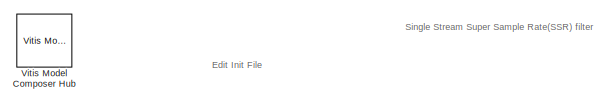
[diagram: root canvas - part 1/4, top left region]
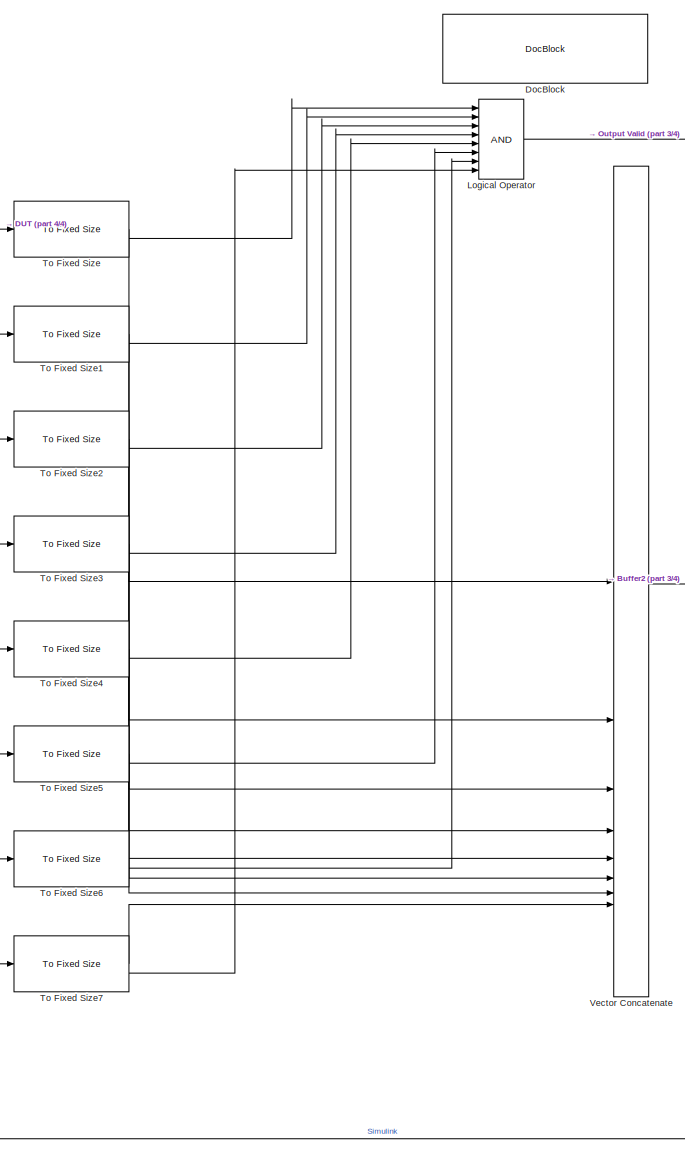
[diagram: root canvas - part 2/4, center side, full height]
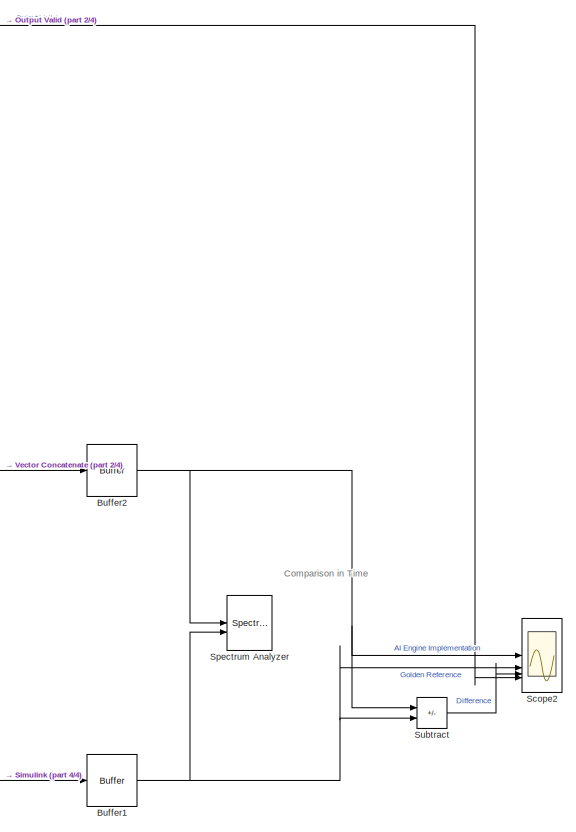
[diagram: root canvas - part 3/4, middle right region]
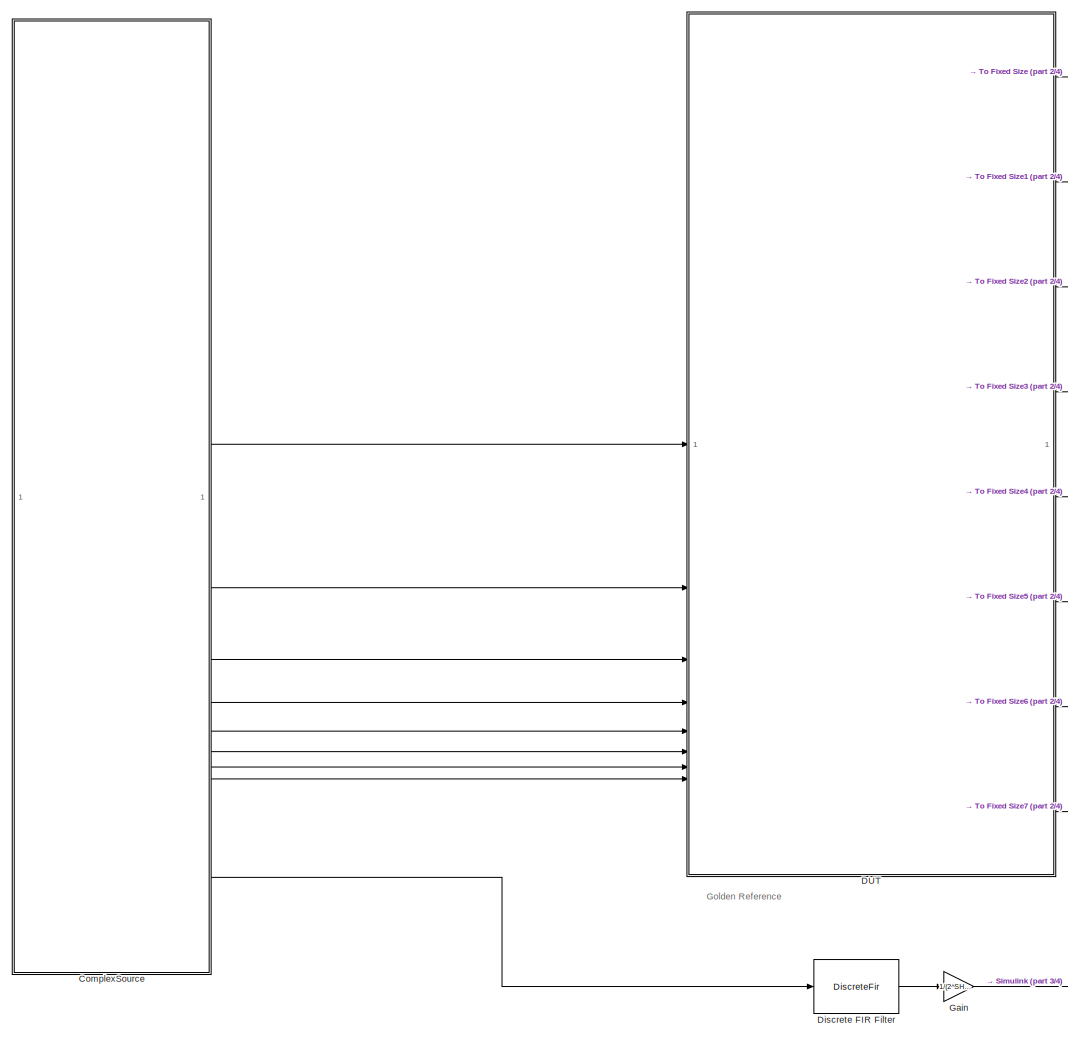
[diagram: root canvas - part 4/4, left side, full height]
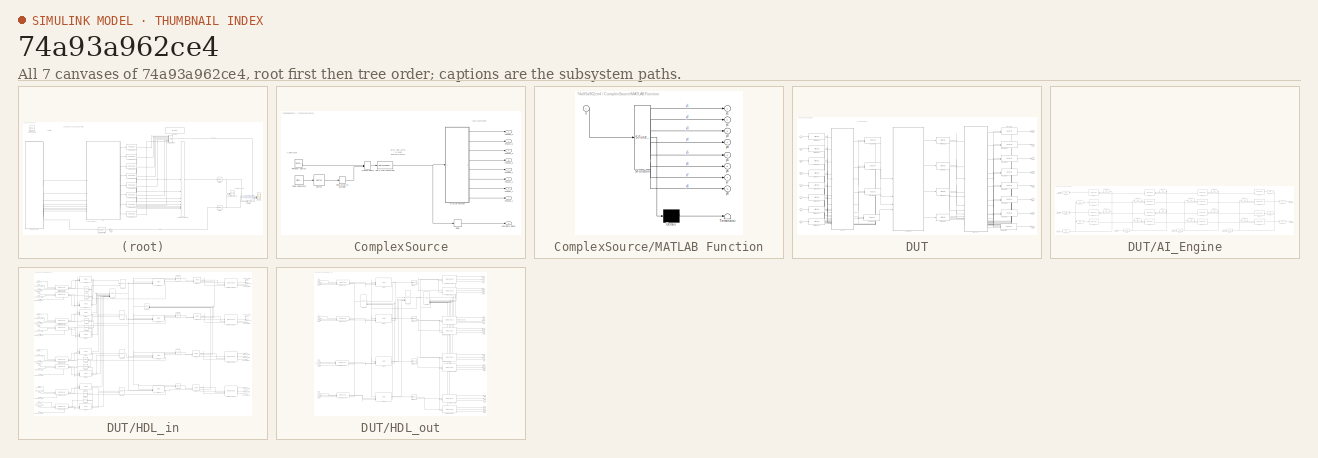
[diagram: thumbnail index - all 7 canvases of the model, root first then tree order]
MODEL slx_74a93a962ce4
KIND model
CONFIG AbsTol = auto
CONFIG EnableMultiTasking = off
CONFIG FixedStep = auto
CONFIG InitFcn = xmcCheckSlxPath(bdroot);\nSSR4withPL_init;\n\n
CONFIG MaxStep = auto
CONFIG MinStep = auto
CONFIG PreLoadFcn = xmcCheckSlxPath(bdroot);\nSSR4withPL_init;\n
CONFIG RelTol = 1e-3
CONFIG SampleTimeConstraint = Unconstrained
CONFIG SolverName = VariableStepAuto
CONFIG StartTime = 0.0
CONFIG StopTime = 512
BLOCK [Buffer] Buffer1
  N = 16
  OutputFrames = off
BLOCK [Buffer] Buffer2
  N = 16
  OutputFrames = off
BLOCK [SubSystem] ComplexSource
BLOCK [Buffer] ComplexSource/Buffer
  N = VectorSize
  OutputFrames = off
BLOCK [Outport] ComplexSource/Complete Signal
  Port = 9
BLOCK [DataTypeConversion] ComplexSource/Data Type Conversion
  OutDataTypeStr = int16
  RndMeth = Floor
  SaturateOnIntegerOverflow = off
BLOCK [Delay] ComplexSource/Delay
  DelayLength = 181
  InputPortMap = u0
  InputProcessing = Columns as channels (frame based)
BLOCK [SubSystem] ComplexSource/MATLAB Function
  ErrorFcn = Stateflow.Translate.translate
  PermitHierarchicalResolution = ExplicitOnly
  SFBlockType = MATLAB Function
  TreatAsAtomicUnit = on
BLOCK [Demux] ComplexSource/MATLAB Function/ Demux 
  Outputs = 1
BLOCK [S-Function] ComplexSource/MATLAB Function/ SFunction 
  EnableBusSupport = on
  FunctionName = sf_sfun
  PortCounts = [1 9]
  SFcnIsStateOwnerBlock = off
  SFunctionDeploymentMode = off
  Tag = Stateflow S-Function 2
BLOCK [Terminator] ComplexSource/MATLAB Function/ Terminator 
BLOCK [Inport] ComplexSource/MATLAB Function/u
BLOCK [Outport] ComplexSource/MATLAB Function/y1
BLOCK [Outport] ComplexSource/MATLAB Function/y2
  Port = 2
BLOCK [Outport] ComplexSource/MATLAB Function/y3
  Port = 3
BLOCK [Outport] ComplexSource/MATLAB Function/y4
  Port = 4
BLOCK [Outport] ComplexSource/MATLAB Function/y5
  Port = 5
BLOCK [Outport] ComplexSource/MATLAB Function/y6
  Port = 6
BLOCK [Outport] ComplexSource/MATLAB Function/y7
  Port = 7
BLOCK [Outport] ComplexSource/MATLAB Function/y8
  Port = 8
BLOCK [ManualSwitch] ComplexSource/Manual Switch
BLOCK [Outport] ComplexSource/Phase0_0
  Port = 2
BLOCK [Outport] ComplexSource/Phase0_1
BLOCK [Outport] ComplexSource/Phase1_0
  Port = 4
BLOCK [Outport] ComplexSource/Phase1_1
  Port = 3
BLOCK [Outport] ComplexSource/Phase2_0
  Port = 6
BLOCK [Outport] ComplexSource/Phase2_1
  Port = 5
BLOCK [Outport] ComplexSource/Phase3_0
  Port = 8
BLOCK [Outport] ComplexSource/Phase3_1
  Port = 7
BLOCK [DiscretePulseGenerator] ComplexSource/Pulse Generator
  Amplitude = 20000
  Period = 32 + 40*5
  PhaseDelay = 32
  SampleTime = 1/T
BLOCK [Reference] ComplexSource/Random Source  REF=dspobslib/Random
Source
  SourceBlock = dspobslib/Random\nSource
  SourceType = Random Source Obsolete
  UserDataPersistent = on
BLOCK [RealImagToComplex] ComplexSource/Real-Imag to Complex
  Input = Real
BLOCK [SubSystem] DUT
BLOCK [Reference] DUT/AIE to HDL  REF=aieUtilities/AIE to HDL
  SourceBlock = aieUtilities/AIE to HDL
  SourceType = AIE to HDL
BLOCK [Reference] DUT/AIE to HDL1  REF=aieUtilities/AIE to HDL
  SourceBlock = aieUtilities/AIE to HDL
  SourceType = AIE to HDL
BLOCK [Reference] DUT/AIE to HDL10  REF=aieUtilities/AIE to HDL
  SourceBlock = aieUtilities/AIE to HDL
  SourceType = AIE to HDL
BLOCK [Reference] DUT/AIE to HDL11  REF=aieUtilities/AIE to HDL
  SourceBlock = aieUtilities/AIE to HDL
  SourceType = AIE to HDL
BLOCK [Reference] DUT/AIE to HDL2  REF=aieUtilities/AIE to HDL
  SourceBlock = aieUtilities/AIE to HDL
  SourceType = AIE to HDL
BLOCK [Reference] DUT/AIE to HDL3  REF=aieUtilities/AIE to HDL
  SourceBlock = aieUtilities/AIE to HDL
  SourceType = AIE to HDL
BLOCK [Reference] DUT/AIE to HDL4  REF=aieUtilities/AIE to HDL
  SourceBlock = aieUtilities/AIE to HDL
  SourceType = AIE to HDL
BLOCK [Reference] DUT/AIE to HDL5  REF=aieUtilities/AIE to HDL
  SourceBlock = aieUtilities/AIE to HDL
  SourceType = AIE to HDL
BLOCK [Reference] DUT/AIE to HDL6  REF=aieUtilities/AIE to HDL
  SourceBlock = aieUtilities/AIE to HDL
  SourceType = AIE to HDL
BLOCK [Reference] DUT/AIE to HDL7  REF=aieUtilities/AIE to HDL
  SourceBlock = aieUtilities/AIE to HDL
  SourceType = AIE to HDL
BLOCK [Reference] DUT/AIE to HDL8  REF=aieUtilities/AIE to HDL
  SourceBlock = aieUtilities/AIE to HDL
  SourceType = AIE to HDL
BLOCK [Reference] DUT/AIE to HDL9  REF=aieUtilities/AIE to HDL
  SourceBlock = aieUtilities/AIE to HDL
  SourceType = AIE to HDL
BLOCK [SubSystem] DUT/AI_Engine
BLOCK [Reference] DUT/AI_Engine/FIFO_00  REF=aieBasic/FIFO
  SourceBlock = aieBasic/FIFO
  SourceType = FIFO
BLOCK [Reference] DUT/AI_Engine/FIFO_01  REF=aieBasic/FIFO
  SourceBlock = aieBasic/FIFO
  SourceType = FIFO
BLOCK [Reference] DUT/AI_Engine/FIFO_02  REF=aieBasic/FIFO
  SourceBlock = aieBasic/FIFO
  SourceType = FIFO
BLOCK [Reference] DUT/AI_Engine/FIFO_03  REF=aieBasic/FIFO
  SourceBlock = aieBasic/FIFO
  SourceType = FIFO
BLOCK [Reference] DUT/AI_Engine/FIFO_10  REF=aieBasic/FIFO
  SourceBlock = aieBasic/FIFO
  SourceType = FIFO
BLOCK [Reference] DUT/AI_Engine/FIFO_11  REF=aieBasic/FIFO
  SourceBlock = aieBasic/FIFO
  SourceType = FIFO
BLOCK [Reference] DUT/AI_Engine/FIFO_12  REF=aieBasic/FIFO
  SourceBlock = aieBasic/FIFO
  SourceType = FIFO
BLOCK [Reference] DUT/AI_Engine/FIFO_13  REF=aieBasic/FIFO
  SourceBlock = aieBasic/FIFO
  SourceType = FIFO
BLOCK [Reference] DUT/AI_Engine/FIFO_20  REF=aieBasic/FIFO
  SourceBlock = aieBasic/FIFO
  SourceType = FIFO
BLOCK [Reference] DUT/AI_Engine/FIFO_21  REF=aieBasic/FIFO
  SourceBlock = aieBasic/FIFO
  SourceType = FIFO
BLOCK [Reference] DUT/AI_Engine/FIFO_22  REF=aieBasic/FIFO
  SourceBlock = aieBasic/FIFO
  SourceType = FIFO
BLOCK [Reference] DUT/AI_Engine/FIFO_23  REF=aieBasic/FIFO
  SourceBlock = aieBasic/FIFO
  SourceType = FIFO
BLOCK [Reference] DUT/AI_Engine/FIFO_30  REF=aieBasic/FIFO
  SourceBlock = aieBasic/FIFO
  SourceType = FIFO
BLOCK [Reference] DUT/AI_Engine/FIFO_31  REF=aieBasic/FIFO
  SourceBlock = aieBasic/FIFO
  SourceType = FIFO
BLOCK [Reference] DUT/AI_Engine/FIFO_32  REF=aieBasic/FIFO
  SourceBlock = aieBasic/FIFO
  SourceType = FIFO
BLOCK [Reference] DUT/AI_Engine/FIFO_33  REF=aieBasic/FIFO
  SourceBlock = aieBasic/FIFO
  SourceType = FIFO
BLOCK [Reference] DUT/AI_Engine/Kernel_00  REF=aieBasic/AIE Class Kernel
  SourceBlock = aieBasic/AIE Class Kernel
  SourceType = AIE Class Kernel Function
BLOCK [Reference] DUT/AI_Engine/Kernel_01  REF=aieBasic/AIE Class Kernel
  NameLocation = top
  SourceBlock = aieBasic/AIE Class Kernel
  SourceType = AIE Class Kernel Function
BLOCK [Reference] DUT/AI_Engine/Kernel_02  REF=aieBasic/AIE Class Kernel
  SourceBlock = aieBasic/AIE Class Kernel
  SourceType = AIE Class Kernel Function
BLOCK [Reference] DUT/AI_Engine/Kernel_03  REF=aieBasic/AIE Class Kernel
  NameLocation = top
  SourceBlock = aieBasic/AIE Class Kernel
  SourceType = AIE Class Kernel Function
BLOCK [Reference] DUT/AI_Engine/Kernel_10  REF=aieBasic/AIE Class Kernel
  SourceBlock = aieBasic/AIE Class Kernel
  SourceType = AIE Class Kernel Function
BLOCK [Reference] DUT/AI_Engine/Kernel_11  REF=aieBasic/AIE Class Kernel
  NameLocation = top
  SourceBlock = aieBasic/AIE Class Kernel
  SourceType = AIE Class Kernel Function
BLOCK [Reference] DUT/AI_Engine/Kernel_12  REF=aieBasic/AIE Class Kernel
  SourceBlock = aieBasic/AIE Class Kernel
  SourceType = AIE Class Kernel Function
BLOCK [Reference] DUT/AI_Engine/Kernel_13  REF=aieBasic/AIE Class Kernel
  NameLocation = top
  SourceBlock = aieBasic/AIE Class Kernel
  SourceType = AIE Class Kernel Function
BLOCK [Reference] DUT/AI_Engine/Kernel_20  REF=aieBasic/AIE Class Kernel
  SourceBlock = aieBasic/AIE Class Kernel
  SourceType = AIE Class Kernel Function
BLOCK [Reference] DUT/AI_Engine/Kernel_21  REF=aieBasic/AIE Class Kernel
  NameLocation = top
  SourceBlock = aieBasic/AIE Class Kernel
  SourceType = AIE Class Kernel Function
BLOCK [Reference] DUT/AI_Engine/Kernel_22  REF=aieBasic/AIE Class Kernel
  SourceBlock = aieBasic/AIE Class Kernel
  SourceType = AIE Class Kernel Function
BLOCK [Reference] DUT/AI_Engine/Kernel_23  REF=aieBasic/AIE Class Kernel
  NameLocation = top
  SourceBlock = aieBasic/AIE Class Kernel
  SourceType = AIE Class Kernel Function
BLOCK [Reference] DUT/AI_Engine/Kernel_30  REF=aieBasic/AIE Class Kernel
  SourceBlock = aieBasic/AIE Class Kernel
  SourceType = AIE Class Kernel Function
BLOCK [Reference] DUT/AI_Engine/Kernel_31  REF=aieBasic/AIE Class Kernel
  NameLocation = top
  SourceBlock = aieBasic/AIE Class Kernel
  SourceType = AIE Class Kernel Function
BLOCK [Reference] DUT/AI_Engine/Kernel_32  REF=aieBasic/AIE Class Kernel
  SourceBlock = aieBasic/AIE Class Kernel
  SourceType = AIE Class Kernel Function
BLOCK [Reference] DUT/AI_Engine/Kernel_33  REF=aieBasic/AIE Class Kernel
  NameLocation = top
  SourceBlock = aieBasic/AIE Class Kernel
  SourceType = AIE Class Kernel Function
BLOCK [Reference] DUT/AI_Engine/PLIO_I0  REF=aieBasic/PLIO
  SourceBlock = aieBasic/PLIO
  SourceType = PLIO
BLOCK [Reference] DUT/AI_Engine/PLIO_I1  REF=aieBasic/PLIO
  SourceBlock = aieBasic/PLIO
  SourceType = PLIO
BLOCK [Reference] DUT/AI_Engine/PLIO_I2  REF=aieBasic/PLIO
  SourceBlock = aieBasic/PLIO
  SourceType = PLIO
BLOCK [Reference] DUT/AI_Engine/PLIO_I3  REF=aieBasic/PLIO
  SourceBlock = aieBasic/PLIO
  SourceType = PLIO
BLOCK [Reference] DUT/AI_Engine/PLIO_O0  REF=aieBasic/PLIO
  SourceBlock = aieBasic/PLIO
  SourceType = PLIO
BLOCK [Reference] DUT/AI_Engine/PLIO_O1  REF=aieBasic/PLIO
  SourceBlock = aieBasic/PLIO
  SourceType = PLIO
BLOCK [Reference] DUT/AI_Engine/PLIO_O2  REF=aieBasic/PLIO
  SourceBlock = aieBasic/PLIO
  SourceType = PLIO
BLOCK [Reference] DUT/AI_Engine/PLIO_O3  REF=aieBasic/PLIO
  SourceBlock = aieBasic/PLIO
  SourceType = PLIO
BLOCK [Inport] DUT/AI_Engine/PhaseIn0
BLOCK [Inport] DUT/AI_Engine/PhaseIn1
  Port = 2
BLOCK [Inport] DUT/AI_Engine/PhaseIn2
  Port = 3
BLOCK [Inport] DUT/AI_Engine/PhaseIn3
  Port = 4
BLOCK [Outport] DUT/AI_Engine/PhaseOut0
BLOCK [Outport] DUT/AI_Engine/PhaseOut1
  NameLocation = top
  Port = 2
BLOCK [Outport] DUT/AI_Engine/PhaseOut2
  Port = 3
BLOCK [Outport] DUT/AI_Engine/PhaseOut3
  NameLocation = top
  Port = 4
BLOCK [Reference] DUT/HDL to AIE  REF=aieUtilities/HDL to AIE
  SourceBlock = aieUtilities/HDL to AIE
  SourceType = HDL to AIE
BLOCK [Reference] DUT/HDL to AIE1  REF=aieUtilities/HDL to AIE
  SourceBlock = aieUtilities/HDL to AIE
  SourceType = HDL to AIE
BLOCK [Reference] DUT/HDL to AIE12  REF=aieUtilities/HDL to AIE
  SourceBlock = aieUtilities/HDL to AIE
  SourceType = HDL to AIE
BLOCK [Reference] DUT/HDL to AIE14  REF=aieUtilities/HDL to AIE
  SourceBlock = aieUtilities/HDL to AIE
  SourceType = HDL to AIE
BLOCK [Reference] DUT/HDL to AIE2  REF=aieUtilities/HDL to AIE
  SourceBlock = aieUtilities/HDL to AIE
  SourceType = HDL to AIE
BLOCK [Reference] DUT/HDL to AIE3  REF=aieUtilities/HDL to AIE
  SourceBlock = aieUtilities/HDL to AIE
  SourceType = HDL to AIE
BLOCK [Reference] DUT/HDL to AIE4  REF=aieUtilities/HDL to AIE
  SourceBlock = aieUtilities/HDL to AIE
  SourceType = HDL to AIE
BLOCK [Reference] DUT/HDL to AIE5  REF=aieUtilities/HDL to AIE
  SourceBlock = aieUtilities/HDL to AIE
  SourceType = HDL to AIE
BLOCK [Reference] DUT/HDL to AIE6  REF=aieUtilities/HDL to AIE
  SourceBlock = aieUtilities/HDL to AIE
  SourceType = HDL to AIE
BLOCK [Reference] DUT/HDL to AIE7  REF=aieUtilities/HDL to AIE
  SourceBlock = aieUtilities/HDL to AIE
  SourceType = HDL to AIE
BLOCK [Reference] DUT/HDL to AIE8  REF=aieUtilities/HDL to AIE
  SourceBlock = aieUtilities/HDL to AIE
  SourceType = HDL to AIE
BLOCK [Reference] DUT/HDL to AIE9  REF=aieUtilities/HDL to AIE
  SourceBlock = aieUtilities/HDL to AIE
  SourceType = HDL to AIE
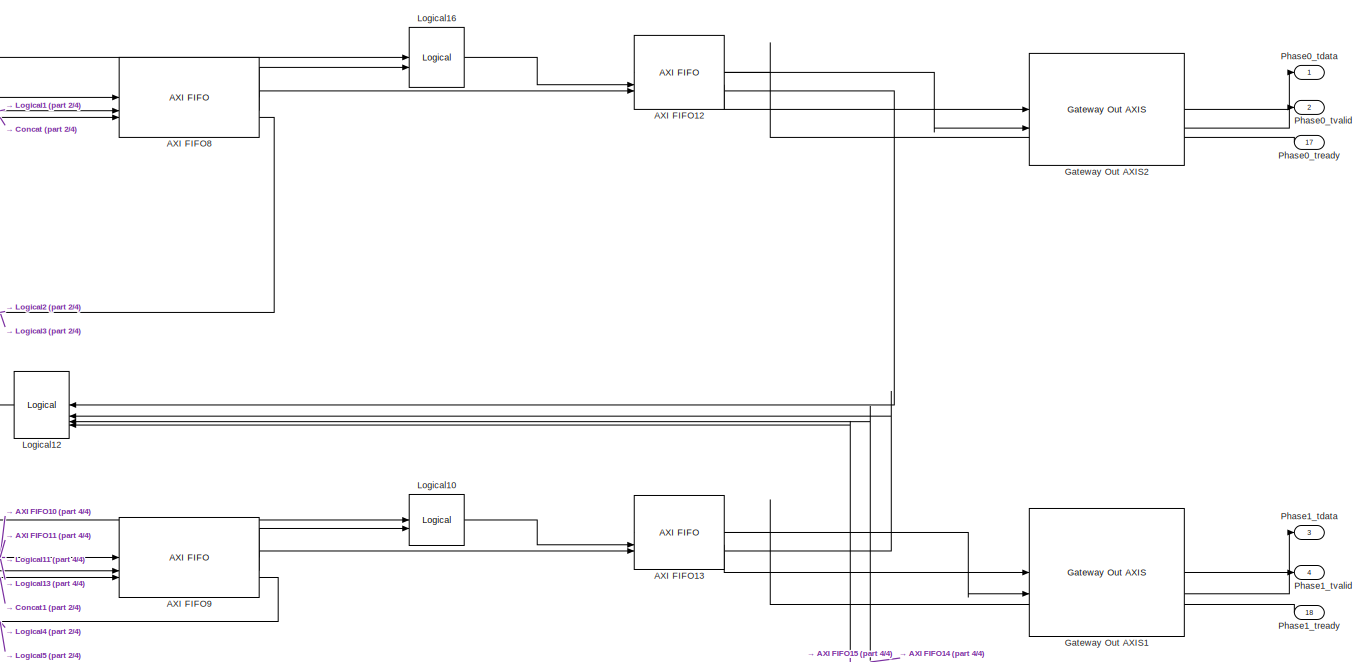
[diagram: DUT/HDL_in - part 1/4, top right region]
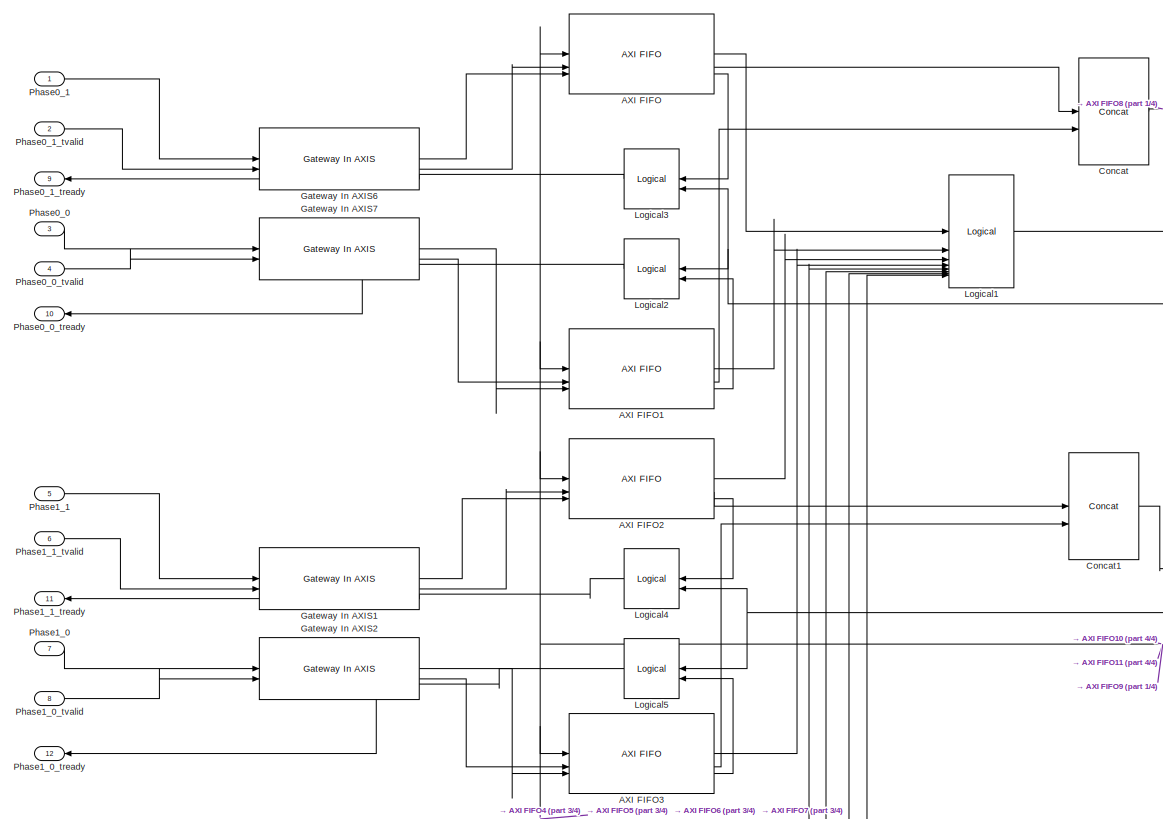
[diagram: DUT/HDL_in - part 2/4, top left region]
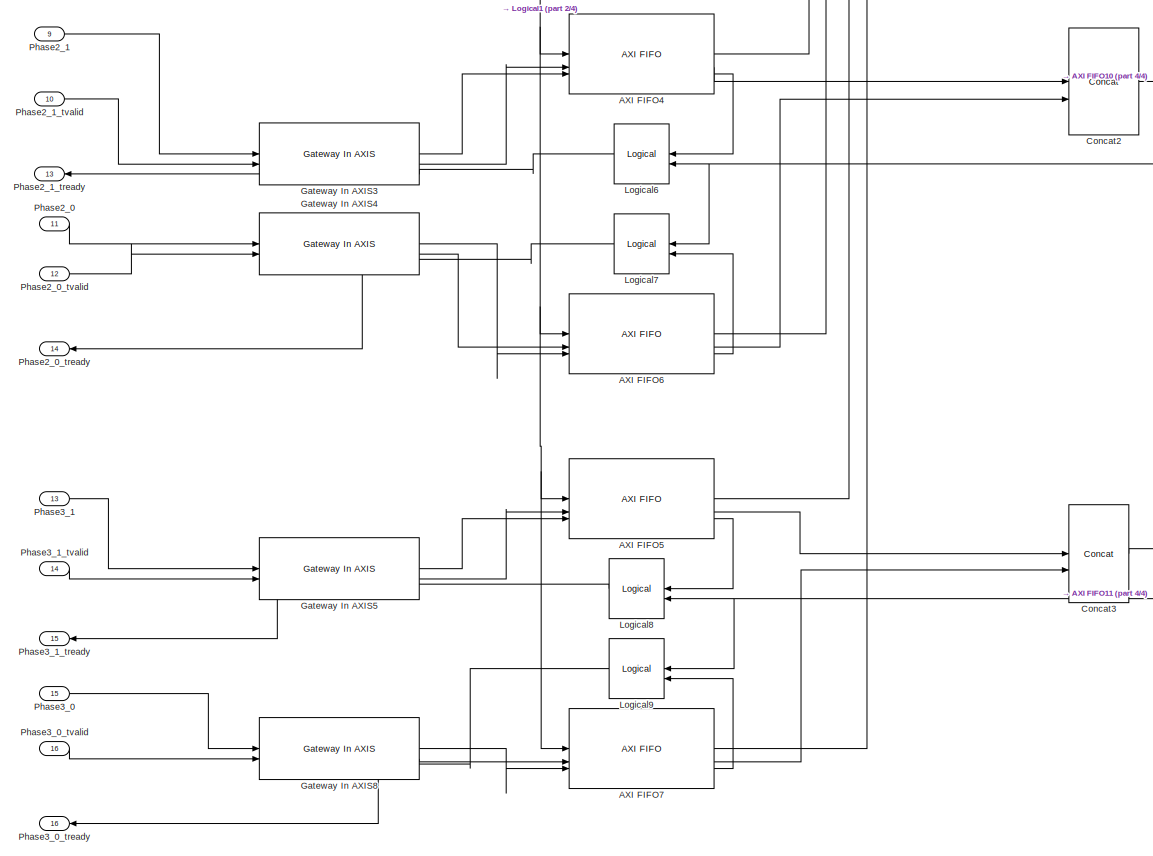
[diagram: DUT/HDL_in - part 3/4, bottom left region]
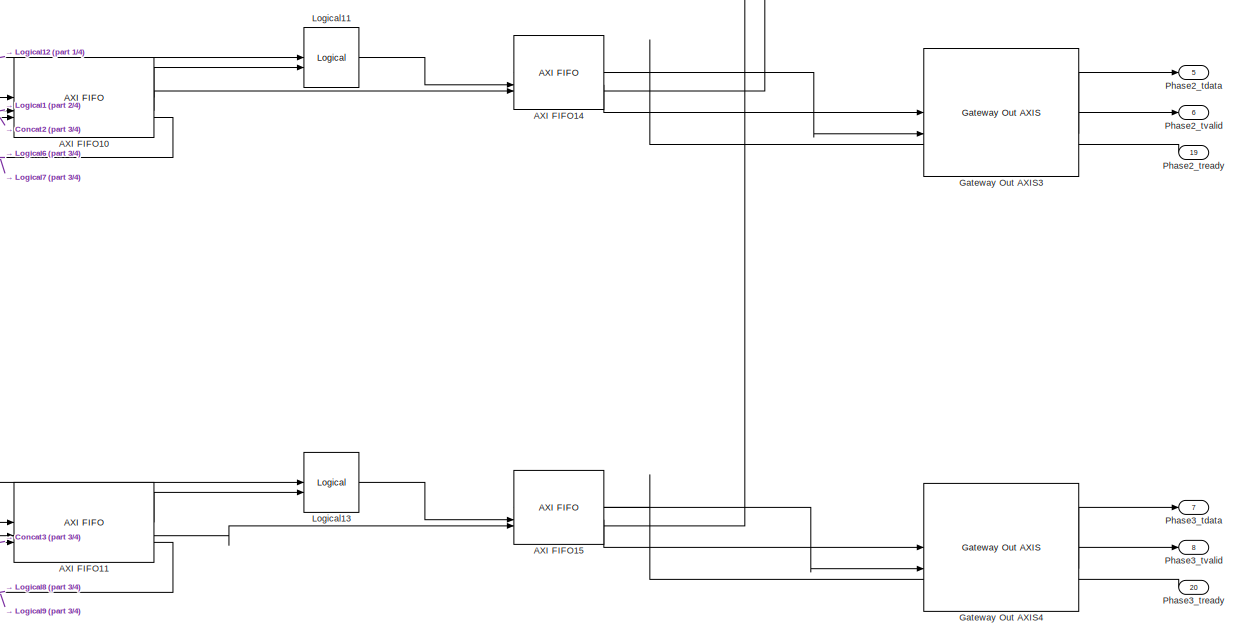
[diagram: DUT/HDL_in - part 4/4, bottom right region]
BLOCK [SubSystem] DUT/HDL_in
  PortSchema = {"entries":[{"content":{"sides":[{"content":{"connectorIds":["In1","In2","Out9","In3","In4","Out10","In5","In6","Out11","In7","In8","Out12","In9","In10","Out13","In11","In12","Out14","In13","In14","Out15","In15","In16","Out16"]},"type":"ConnectorPlacement.EquallySpacedRectSide","uuid":"43963710-6fd6-4ca2-aef5-f578b9dcb653"},{"content":{"connectorIds":["Out1","Out2","In17","Out3","Out4","In18","Out...<+477ch>
BLOCK [Reference] DUT/HDL_in/AXI FIFO  REF=hdlBasic/AXI FIFO
  SourceBlock = hdlBasic/AXI FIFO
  SourceType = AXI FIFO Block Block
BLOCK [Reference] DUT/HDL_in/AXI FIFO1  REF=hdlBasic/AXI FIFO
  SourceBlock = hdlBasic/AXI FIFO
  SourceType = AXI FIFO Block Block
BLOCK [Reference] DUT/HDL_in/AXI FIFO10  REF=hdlBasic/AXI FIFO
  SourceBlock = hdlBasic/AXI FIFO
  SourceType = AXI FIFO Block Block
BLOCK [Reference] DUT/HDL_in/AXI FIFO11  REF=hdlBasic/AXI FIFO
  SourceBlock = hdlBasic/AXI FIFO
  SourceType = AXI FIFO Block Block
BLOCK [Reference] DUT/HDL_in/AXI FIFO12  REF=hdlBasic/AXI FIFO
  SourceBlock = hdlBasic/AXI FIFO
  SourceType = AXI FIFO Block Block
BLOCK [Reference] DUT/HDL_in/AXI FIFO13  REF=hdlBasic/AXI FIFO
  SourceBlock = hdlBasic/AXI FIFO
  SourceType = AXI FIFO Block Block
BLOCK [Reference] DUT/HDL_in/AXI FIFO14  REF=hdlBasic/AXI FIFO
  SourceBlock = hdlBasic/AXI FIFO
  SourceType = AXI FIFO Block Block
BLOCK [Reference] DUT/HDL_in/AXI FIFO15  REF=hdlBasic/AXI FIFO
  SourceBlock = hdlBasic/AXI FIFO
  SourceType = AXI FIFO Block Block
BLOCK [Reference] DUT/HDL_in/AXI FIFO2  REF=hdlBasic/AXI FIFO
  SourceBlock = hdlBasic/AXI FIFO
  SourceType = AXI FIFO Block Block
BLOCK [Reference] DUT/HDL_in/AXI FIFO3  REF=hdlBasic/AXI FIFO
  SourceBlock = hdlBasic/AXI FIFO
  SourceType = AXI FIFO Block Block
BLOCK [Reference] DUT/HDL_in/AXI FIFO4  REF=hdlBasic/AXI FIFO
  SourceBlock = hdlBasic/AXI FIFO
  SourceType = AXI FIFO Block Block
BLOCK [Reference] DUT/HDL_in/AXI FIFO5  REF=hdlBasic/AXI FIFO
  SourceBlock = hdlBasic/AXI FIFO
  SourceType = AXI FIFO Block Block
BLOCK [Reference] DUT/HDL_in/AXI FIFO6  REF=hdlBasic/AXI FIFO
  SourceBlock = hdlBasic/AXI FIFO
  SourceType = AXI FIFO Block Block
BLOCK [Reference] DUT/HDL_in/AXI FIFO7  REF=hdlBasic/AXI FIFO
  SourceBlock = hdlBasic/AXI FIFO
  SourceType = AXI FIFO Block Block
BLOCK [Reference] DUT/HDL_in/AXI FIFO8  REF=hdlBasic/AXI FIFO
  SourceBlock = hdlBasic/AXI FIFO
  SourceType = AXI FIFO Block Block
BLOCK [Reference] DUT/HDL_in/AXI FIFO9  REF=hdlBasic/AXI FIFO
  SourceBlock = hdlBasic/AXI FIFO
  SourceType = AXI FIFO Block Block
BLOCK [Reference] DUT/HDL_in/Concat  REF=hdlBasic/Concat
  SourceBlock = hdlBasic/Concat
  SourceType = Bus Concatenator Block
BLOCK [Reference] DUT/HDL_in/Concat1  REF=hdlBasic/Concat
  SourceBlock = hdlBasic/Concat
  SourceType = Bus Concatenator Block
BLOCK [Reference] DUT/HDL_in/Concat2  REF=hdlBasic/Concat
  SourceBlock = hdlBasic/Concat
  SourceType = Bus Concatenator Block
BLOCK [Reference] DUT/HDL_in/Concat3  REF=hdlBasic/Concat
  SourceBlock = hdlBasic/Concat
  SourceType = Bus Concatenator Block
BLOCK [Reference] DUT/HDL_in/Gateway In AXIS1  REF=hdlUtilities/Gateway In AXIS
  SourceBlock = hdlUtilities/Gateway In AXIS
  SourceType = Gateway In AXIS
BLOCK [Reference] DUT/HDL_in/Gateway In AXIS2  REF=hdlUtilities/Gateway In AXIS
  SourceBlock = hdlUtilities/Gateway In AXIS
  SourceType = Gateway In AXIS
BLOCK [Reference] DUT/HDL_in/Gateway In AXIS3  REF=hdlUtilities/Gateway In AXIS
  SourceBlock = hdlUtilities/Gateway In AXIS
  SourceType = Gateway In AXIS
BLOCK [Reference] DUT/HDL_in/Gateway In AXIS4  REF=hdlUtilities/Gateway In AXIS
  SourceBlock = hdlUtilities/Gateway In AXIS
  SourceType = Gateway In AXIS
BLOCK [Reference] DUT/HDL_in/Gateway In AXIS5  REF=hdlUtilities/Gateway In AXIS
  SourceBlock = hdlUtilities/Gateway In AXIS
  SourceType = Gateway In AXIS
BLOCK [Reference] DUT/HDL_in/Gateway In AXIS6  REF=hdlUtilities/Gateway In AXIS
  SourceBlock = hdlUtilities/Gateway In AXIS
  SourceType = Gateway In AXIS
BLOCK [Reference] DUT/HDL_in/Gateway In AXIS7  REF=hdlUtilities/Gateway In AXIS
  SourceBlock = hdlUtilities/Gateway In AXIS
  SourceType = Gateway In AXIS
BLOCK [Reference] DUT/HDL_in/Gateway In AXIS8  REF=hdlUtilities/Gateway In AXIS
  SourceBlock = hdlUtilities/Gateway In AXIS
  SourceType = Gateway In AXIS
BLOCK [Reference] DUT/HDL_in/Gateway Out AXIS1  REF=hdlUtilities/Gateway Out AXIS
  SourceBlock = hdlUtilities/Gateway Out AXIS
  SourceType = Gateway Out AXIS
BLOCK [Reference] DUT/HDL_in/Gateway Out AXIS2  REF=hdlUtilities/Gateway Out AXIS
  SourceBlock = hdlUtilities/Gateway Out AXIS
  SourceType = Gateway Out AXIS
BLOCK [Reference] DUT/HDL_in/Gateway Out AXIS3  REF=hdlUtilities/Gateway Out AXIS
  SourceBlock = hdlUtilities/Gateway Out AXIS
  SourceType = Gateway Out AXIS
BLOCK [Reference] DUT/HDL_in/Gateway Out AXIS4  REF=hdlUtilities/Gateway Out AXIS
  SourceBlock = hdlUtilities/Gateway Out AXIS
  SourceType = Gateway Out AXIS
BLOCK [Reference] DUT/HDL_in/Logical1  REF=hdlBasic/Logical
  SourceBlock = hdlBasic/Logical
  SourceType = Logical Block Block
BLOCK [Reference] DUT/HDL_in/Logical10  REF=hdlBasic/Logical
  SourceBlock = hdlBasic/Logical
  SourceType = Logical Block Block
BLOCK [Reference] DUT/HDL_in/Logical11  REF=hdlBasic/Logical
  SourceBlock = hdlBasic/Logical
  SourceType = Logical Block Block
BLOCK [Reference] DUT/HDL_in/Logical12  REF=hdlBasic/Logical
  NameLocation = top
  SourceBlock = hdlBasic/Logical
  SourceType = Logical Block Block
BLOCK [Reference] DUT/HDL_in/Logical13  REF=hdlBasic/Logical
  SourceBlock = hdlBasic/Logical
  SourceType = Logical Block Block
BLOCK [Reference] DUT/HDL_in/Logical16  REF=hdlBasic/Logical
  SourceBlock = hdlBasic/Logical
  SourceType = Logical Block Block
BLOCK [Reference] DUT/HDL_in/Logical2  REF=hdlBasic/Logical
  NameLocation = top
  SourceBlock = hdlBasic/Logical
  SourceType = Logical Block Block
BLOCK [Reference] DUT/HDL_in/Logical3  REF=hdlBasic/Logical
  NameLocation = top
  SourceBlock = hdlBasic/Logical
  SourceType = Logical Block Block
BLOCK [Reference] DUT/HDL_in/Logical4  REF=hdlBasic/Logical
  NameLocation = top
  SourceBlock = hdlBasic/Logical
  SourceType = Logical Block Block
BLOCK [Reference] DUT/HDL_in/Logical5  REF=hdlBasic/Logical
  NameLocation = top
  SourceBlock = hdlBasic/Logical
  SourceType = Logical Block Block
BLOCK [Reference] DUT/HDL_in/Logical6  REF=hdlBasic/Logical
  NameLocation = top
  SourceBlock = hdlBasic/Logical
  SourceType = Logical Block Block
BLOCK [Reference] DUT/HDL_in/Logical7  REF=hdlBasic/Logical
  NameLocation = top
  SourceBlock = hdlBasic/Logical
  SourceType = Logical Block Block
BLOCK [Reference] DUT/HDL_in/Logical8  REF=hdlBasic/Logical
  NameLocation = top
  SourceBlock = hdlBasic/Logical
  SourceType = Logical Block Block
BLOCK [Reference] DUT/HDL_in/Logical9  REF=hdlBasic/Logical
  NameLocation = top
  SourceBlock = hdlBasic/Logical
  SourceType = Logical Block Block
BLOCK [Inport] DUT/HDL_in/Phase0_0
  Port = 3
BLOCK [Outport] DUT/HDL_in/Phase0_0_tready
  NameLocation = top
  Port = 10
BLOCK [Inport] DUT/HDL_in/Phase0_0_tvalid
  Port = 4
BLOCK [Inport] DUT/HDL_in/Phase0_1
BLOCK [Outport] DUT/HDL_in/Phase0_1_tready
  NameLocation = top
  Port = 9
BLOCK [Inport] DUT/HDL_in/Phase0_1_tvalid
  Port = 2
BLOCK [Outport] DUT/HDL_in/Phase0_tdata
BLOCK [Inport] DUT/HDL_in/Phase0_tready
  Port = 17
BLOCK [Outport] DUT/HDL_in/Phase0_tvalid
  Port = 2
BLOCK [Inport] DUT/HDL_in/Phase1_0
  Port = 7
BLOCK [Outport] DUT/HDL_in/Phase1_0_tready
  NameLocation = top
  Port = 12
BLOCK [Inport] DUT/HDL_in/Phase1_0_tvalid
  Port = 8
BLOCK [Inport] DUT/HDL_in/Phase1_1
  Port = 5
BLOCK [Outport] DUT/HDL_in/Phase1_1_tready
  NameLocation = top
  Port = 11
BLOCK [Inport] DUT/HDL_in/Phase1_1_tvalid
  Port = 6
BLOCK [Outport] DUT/HDL_in/Phase1_tdata
  Port = 3
BLOCK [Inport] DUT/HDL_in/Phase1_tready
  Port = 18
BLOCK [Outport] DUT/HDL_in/Phase1_tvalid
  Port = 4
BLOCK [Inport] DUT/HDL_in/Phase2_0
  Port = 11
BLOCK [Outport] DUT/HDL_in/Phase2_0_tready
  NameLocation = top
  Port = 14
BLOCK [Inport] DUT/HDL_in/Phase2_0_tvalid
  Port = 12
BLOCK [Inport] DUT/HDL_in/Phase2_1
  Port = 9
BLOCK [Outport] DUT/HDL_in/Phase2_1_tready
  NameLocation = top
  Port = 13
BLOCK [Inport] DUT/HDL_in/Phase2_1_tvalid
  Port = 10
BLOCK [Outport] DUT/HDL_in/Phase2_tdata
  Port = 5
BLOCK [Inport] DUT/HDL_in/Phase2_tready
  Port = 19
BLOCK [Outport] DUT/HDL_in/Phase2_tvalid
  Port = 6
BLOCK [Inport] DUT/HDL_in/Phase3_0
  Port = 15
BLOCK [Outport] DUT/HDL_in/Phase3_0_tready
  NameLocation = top
  Port = 16
BLOCK [Inport] DUT/HDL_in/Phase3_0_tvalid
  Port = 16
BLOCK [Inport] DUT/HDL_in/Phase3_1
  Port = 13
BLOCK [Outport] DUT/HDL_in/Phase3_1_tready
  NameLocation = top
  Port = 15
BLOCK [Inport] DUT/HDL_in/Phase3_1_tvalid
  Port = 14
BLOCK [Outport] DUT/HDL_in/Phase3_tdata
  Port = 7
BLOCK [Inport] DUT/HDL_in/Phase3_tready
  Port = 20
BLOCK [Outport] DUT/HDL_in/Phase3_tvalid
  Port = 8
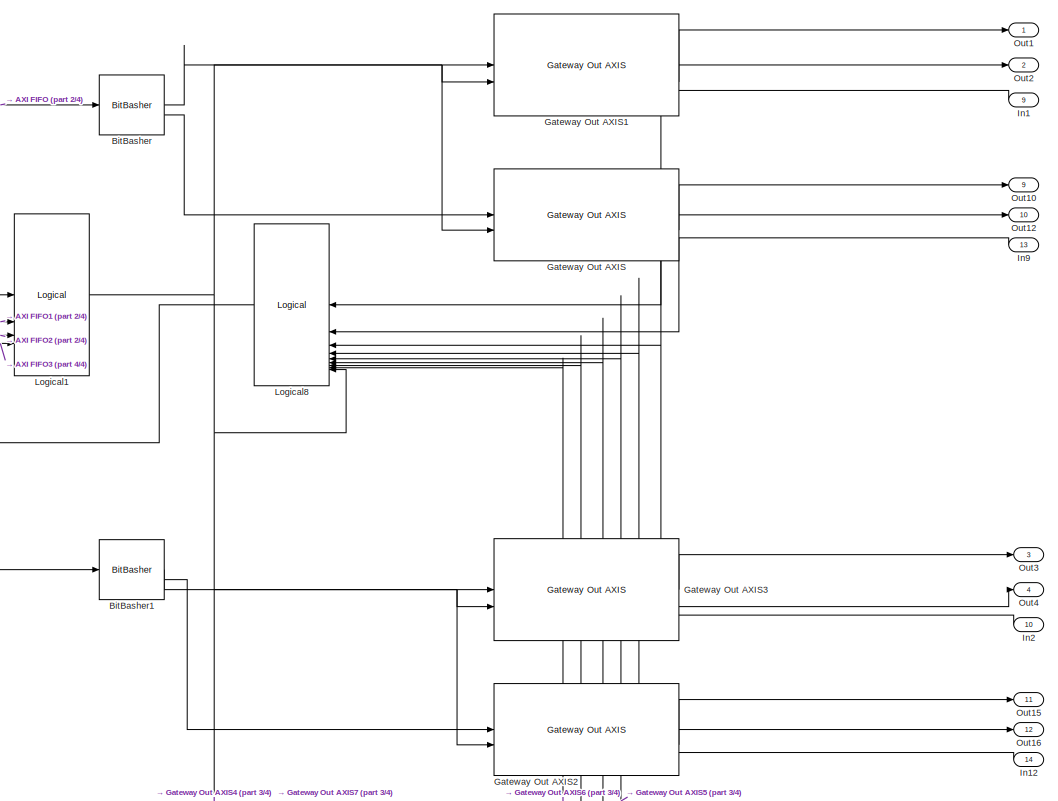
[diagram: DUT/HDL_out - part 1/4, top right region]
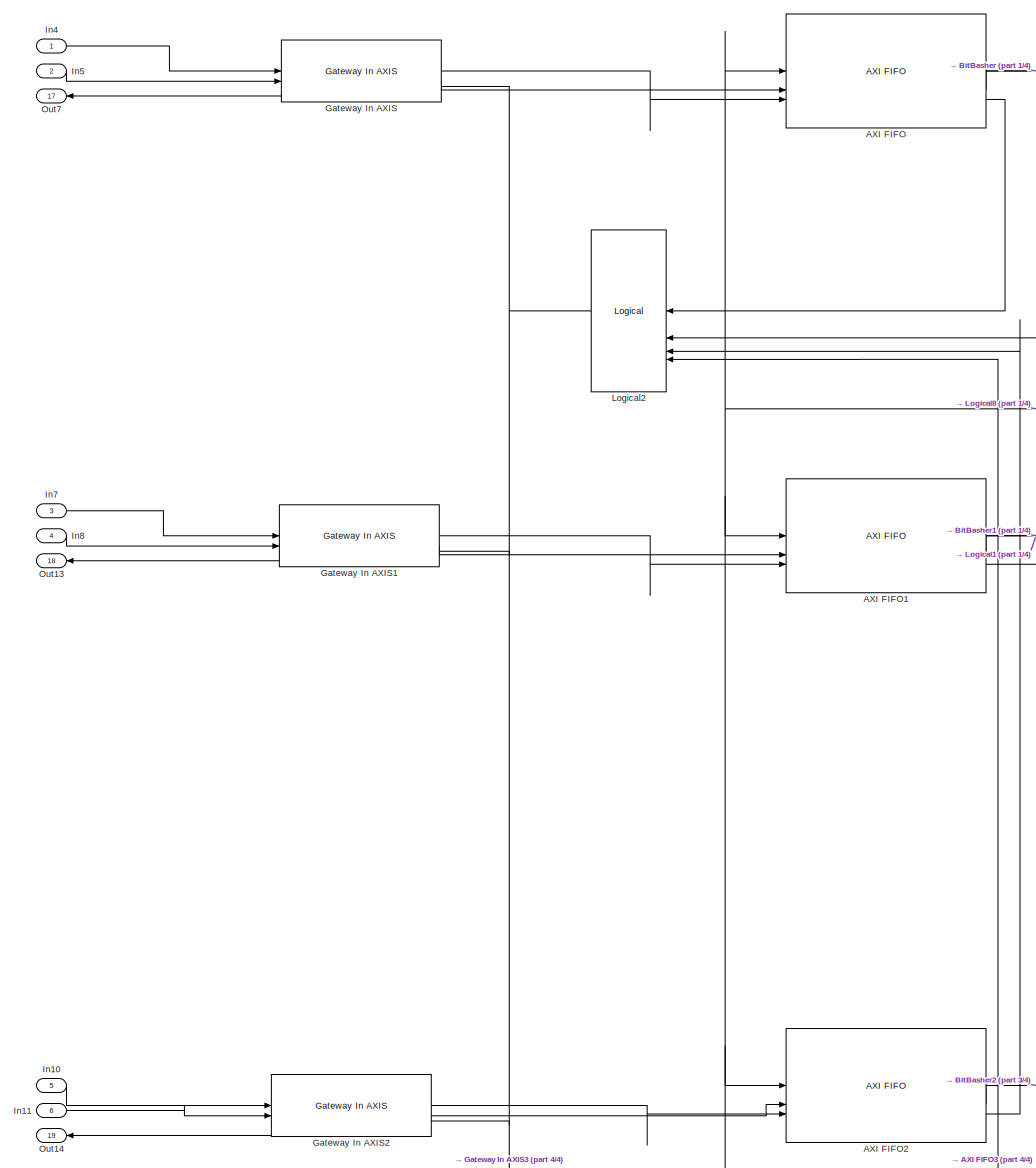
[diagram: DUT/HDL_out - part 2/4, middle left region]
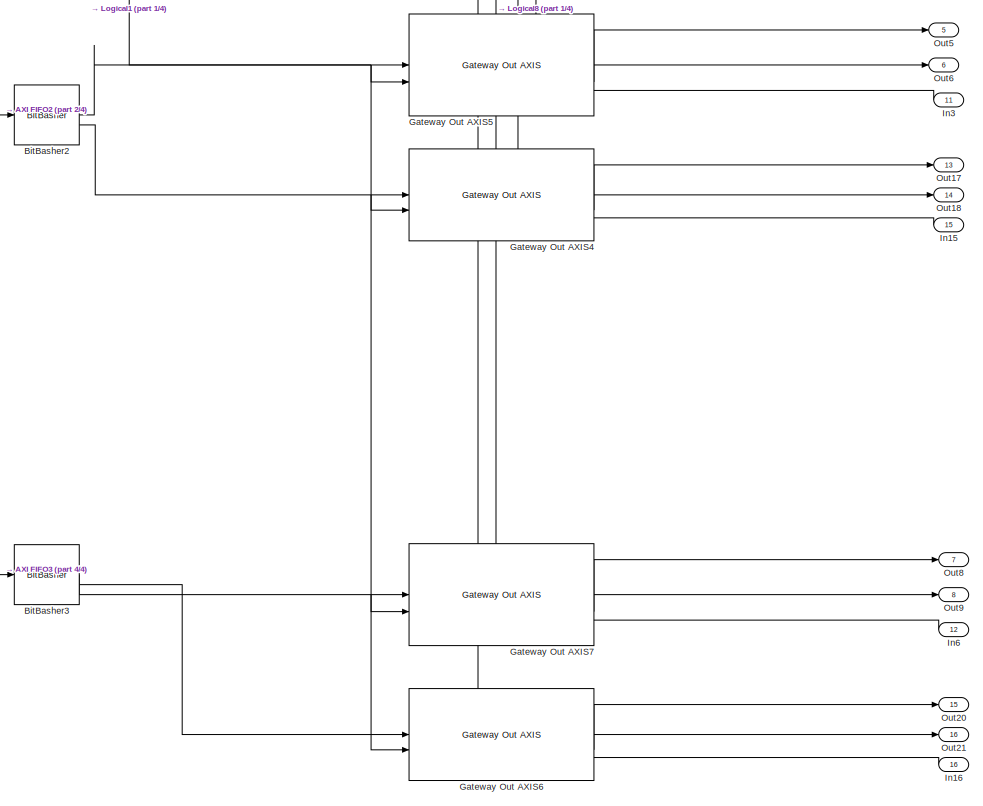
[diagram: DUT/HDL_out - part 3/4, bottom right region]
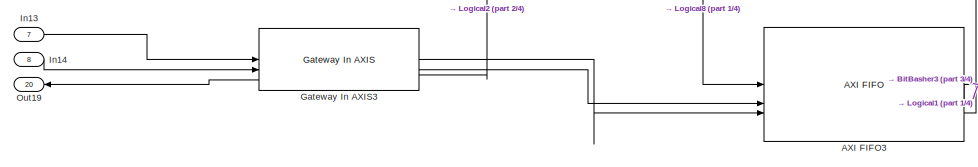
[diagram: DUT/HDL_out - part 4/4, bottom left region]
BLOCK [SubSystem] DUT/HDL_out
  PortSchema = {"entries":[{"content":{"sides":[{"content":{"connectorIds":["In1","In2","Out17","In3","In4","Out18","In5","In6","Out19","In7","In8","Out20"]},"type":"ConnectorPlacement.EquallySpacedRectSide","uuid":"cedaa4bc-2afe-4f55-8e95-e7c88c9ac45d"},{"content":{"connectorIds":["Out1","Out2","In9","Out3","Out4","In10","Out5","Out6","In11","Out7","Out8","In12","Out9","Out10","In13","Out11","Out12","In14","Out...<+481ch>
BLOCK [Reference] DUT/HDL_out/AXI FIFO  REF=hdlBasic/AXI FIFO
  SourceBlock = hdlBasic/AXI FIFO
  SourceType = AXI FIFO Block Block
BLOCK [Reference] DUT/HDL_out/AXI FIFO1  REF=hdlBasic/AXI FIFO
  SourceBlock = hdlBasic/AXI FIFO
  SourceType = AXI FIFO Block Block
BLOCK [Reference] DUT/HDL_out/AXI FIFO2  REF=hdlBasic/AXI FIFO
  SourceBlock = hdlBasic/AXI FIFO
  SourceType = AXI FIFO Block Block
BLOCK [Reference] DUT/HDL_out/AXI FIFO3  REF=hdlBasic/AXI FIFO
  SourceBlock = hdlBasic/AXI FIFO
  SourceType = AXI FIFO Block Block
BLOCK [Reference] DUT/HDL_out/BitBasher  REF=hdlBasic/BitBasher
  SourceBlock = hdlBasic/BitBasher
  SourceType = BitBasher Block
BLOCK [Reference] DUT/HDL_out/BitBasher1  REF=hdlBasic/BitBasher
  SourceBlock = hdlBasic/BitBasher
  SourceType = BitBasher Block
BLOCK [Reference] DUT/HDL_out/BitBasher2  REF=hdlBasic/BitBasher
  SourceBlock = hdlBasic/BitBasher
  SourceType = BitBasher Block
BLOCK [Reference] DUT/HDL_out/BitBasher3  REF=hdlBasic/BitBasher
  SourceBlock = hdlBasic/BitBasher
  SourceType = BitBasher Block
BLOCK [Reference] DUT/HDL_out/Gateway In AXIS  REF=hdlUtilities/Gateway In AXIS
  SourceBlock = hdlUtilities/Gateway In AXIS
  SourceType = Gateway In AXIS
BLOCK [Reference] DUT/HDL_out/Gateway In AXIS1  REF=hdlUtilities/Gateway In AXIS
  SourceBlock = hdlUtilities/Gateway In AXIS
  SourceType = Gateway In AXIS
BLOCK [Reference] DUT/HDL_out/Gateway In AXIS2  REF=hdlUtilities/Gateway In AXIS
  SourceBlock = hdlUtilities/Gateway In AXIS
  SourceType = Gateway In AXIS
BLOCK [Reference] DUT/HDL_out/Gateway In AXIS3  REF=hdlUtilities/Gateway In AXIS
  SourceBlock = hdlUtilities/Gateway In AXIS
  SourceType = Gateway In AXIS
BLOCK [Reference] DUT/HDL_out/Gateway Out AXIS  REF=hdlUtilities/Gateway Out AXIS
  SourceBlock = hdlUtilities/Gateway Out AXIS
  SourceType = Gateway Out AXIS
BLOCK [Reference] DUT/HDL_out/Gateway Out AXIS1  REF=hdlUtilities/Gateway Out AXIS
  SourceBlock = hdlUtilities/Gateway Out AXIS
  SourceType = Gateway Out AXIS
BLOCK [Reference] DUT/HDL_out/Gateway Out AXIS2  REF=hdlUtilities/Gateway Out AXIS
  SourceBlock = hdlUtilities/Gateway Out AXIS
  SourceType = Gateway Out AXIS
BLOCK [Reference] DUT/HDL_out/Gateway Out AXIS3  REF=hdlUtilities/Gateway Out AXIS
  SourceBlock = hdlUtilities/Gateway Out AXIS
  SourceType = Gateway Out AXIS
BLOCK [Reference] DUT/HDL_out/Gateway Out AXIS4  REF=hdlUtilities/Gateway Out AXIS
  SourceBlock = hdlUtilities/Gateway Out AXIS
  SourceType = Gateway Out AXIS
BLOCK [Reference] DUT/HDL_out/Gateway Out AXIS5  REF=hdlUtilities/Gateway Out AXIS
  SourceBlock = hdlUtilities/Gateway Out AXIS
  SourceType = Gateway Out AXIS
BLOCK [Reference] DUT/HDL_out/Gateway Out AXIS6  REF=hdlUtilities/Gateway Out AXIS
  SourceBlock = hdlUtilities/Gateway Out AXIS
  SourceType = Gateway Out AXIS
BLOCK [Reference] DUT/HDL_out/Gateway Out AXIS7  REF=hdlUtilities/Gateway Out AXIS
  SourceBlock = hdlUtilities/Gateway Out AXIS
  SourceType = Gateway Out AXIS
BLOCK [Inport] DUT/HDL_out/In1
  Port = 9
BLOCK [Inport] DUT/HDL_out/In10
  Port = 5
BLOCK [Inport] DUT/HDL_out/In11
  Port = 6
BLOCK [Inport] DUT/HDL_out/In12
  Port = 14
BLOCK [Inport] DUT/HDL_out/In13
  Port = 7
BLOCK [Inport] DUT/HDL_out/In14
  Port = 8
BLOCK [Inport] DUT/HDL_out/In15
  Port = 15
BLOCK [Inport] DUT/HDL_out/In16
  Port = 16
BLOCK [Inport] DUT/HDL_out/In2
  Port = 10
BLOCK [Inport] DUT/HDL_out/In3
  Port = 11
BLOCK [Inport] DUT/HDL_out/In4
BLOCK [Inport] DUT/HDL_out/In5
  Port = 2
BLOCK [Inport] DUT/HDL_out/In6
  Port = 12
BLOCK [Inport] DUT/HDL_out/In7
  Port = 3
BLOCK [Inport] DUT/HDL_out/In8
  Port = 4
BLOCK [Inport] DUT/HDL_out/In9
  Port = 13
BLOCK [Reference] DUT/HDL_out/Logical1  REF=hdlBasic/Logical
  SourceBlock = hdlBasic/Logical
  SourceType = Logical Block Block
BLOCK [Reference] DUT/HDL_out/Logical2  REF=hdlBasic/Logical
  NameLocation = top
  SourceBlock = hdlBasic/Logical
  SourceType = Logical Block Block
BLOCK [Reference] DUT/HDL_out/Logical8  REF=hdlBasic/Logical
  NameLocation = top
  SourceBlock = hdlBasic/Logical
  SourceType = Logical Block Block
BLOCK [Outport] DUT/HDL_out/Out1
BLOCK [Outport] DUT/HDL_out/Out10
  Port = 9
BLOCK [Outport] DUT/HDL_out/Out12
  Port = 10
BLOCK [Outport] DUT/HDL_out/Out13
  Port = 18
BLOCK [Outport] DUT/HDL_out/Out14
  Port = 19
BLOCK [Outport] DUT/HDL_out/Out15
  NameLocation = top
  Port = 11
BLOCK [Outport] DUT/HDL_out/Out16
  Port = 12
BLOCK [Outport] DUT/HDL_out/Out17
  Port = 13
BLOCK [Outport] DUT/HDL_out/Out18
  Port = 14
BLOCK [Outport] DUT/HDL_out/Out19
  Port = 20
BLOCK [Outport] DUT/HDL_out/Out2
  Port = 2
BLOCK [Outport] DUT/HDL_out/Out20
  Port = 15
BLOCK [Outport] DUT/HDL_out/Out21
  Port = 16
BLOCK [Outport] DUT/HDL_out/Out3
  Port = 3
BLOCK [Outport] DUT/HDL_out/Out4
  Port = 4
BLOCK [Outport] DUT/HDL_out/Out5
  Port = 5
BLOCK [Outport] DUT/HDL_out/Out6
  Port = 6
BLOCK [Outport] DUT/HDL_out/Out7
  Port = 17
BLOCK [Outport] DUT/HDL_out/Out8
  Port = 7
BLOCK [Outport] DUT/HDL_out/Out9
  Port = 8
BLOCK [Inport] DUT/In1
BLOCK [Inport] DUT/In2
  Port = 2
BLOCK [Inport] DUT/In3
  Port = 3
BLOCK [Inport] DUT/In4
  Port = 4
BLOCK [Inport] DUT/In6
  Port = 5
BLOCK [Inport] DUT/In7
  Port = 6
BLOCK [Inport] DUT/In8
  Port = 7
BLOCK [Inport] DUT/In9
  Port = 8
BLOCK [Outport] DUT/Out1
BLOCK [Outport] DUT/Out2
  Port = 2
BLOCK [Outport] DUT/Out3
  Port = 3
BLOCK [Outport] DUT/Out4
  Port = 4
BLOCK [Outport] DUT/Out5
  Port = 5
BLOCK [Outport] DUT/Out6
  Port = 6
BLOCK [Outport] DUT/Out7
  Port = 7
BLOCK [Outport] DUT/Out8
  Port = 8
BLOCK [DiscreteFir] Discrete FIR Filter
  Coefficients = Taps
  InputPortMap = u0
  InputProcessing = Columns as channels (frame based)
  OutputPortMap = o0
BLOCK [Reference] DocBlock  REF=simulink/Model-Wide
Utilities/DocBlock
  SourceBlock = simulink/Model-Wide\nUtilities/DocBlock
  SourceType = DocBlock
  UserDataPersistent = on
BLOCK [Gain] Gain
  Gain = 1/(2^SHIFT_ACC)
BLOCK [Logic] Logical Operator
  AllPortsSameDT = off
  Inputs = 8
  OutDataTypeStr = boolean
BLOCK [Scope] Scope2
  Floating = off
  NumInputPorts = 4
  ScopeSpecificationString = Simulink.scopes.TimeScopeBlockCfg('CurrentConfiguration', extmgr.ConfigurationSet(extmgr.Configuration('Core','General UI',true),extmgr.Configuration('Core','Source UI',true),extmgr.Configuration('Sources','WiredSimulink',true,'DataLoggingVariableName','ScopeData2'),extmgr.Configuration('Visuals','Time Domain',true,'InputProcessing','FrameProcessing','SerializedDisplays',{struct('MinYLimReal','-26...<+4113ch>
BLOCK [SpectrumAnalyzer] Spectrum Analyzer
  AllowFFTLengthLessThanSamplesPerUpdate = on
  AveragingMethod = Exponential
  ChannelNames = [""]
  DefaultConfigurationName = spbscopes.SpectrumAnalyzerBlockCfg
  GraphicalSettings = {"GraphicalSettings":{"Style":{"BackgroundColor":[0.12941176470588237,0.12941176470588237,0.12941176470588237],"AxesColor":[0,0,0],"LabelsColor":[0.6862745098039216,0.6862745098039216,0.6862745098039216],"PreserveColors":false,"Visible":[true],"LineStyle":["-"],"LineColor":[[1,1,0.06666666666666667]],"LineWidth":[1],"Marker":["none"],"FontSize":"small"},"Cursors":{"Enabled":false,"XLocation":[2,8]...<+873ch>
  Method = Welch
  NumInputPorts = 2
  SampleRate = 8
  ScopeFrameLocation = window
  ScopeSpecificationString = spbscopes.SpectrumAnalyzerBlockCfg('CurrentConfiguration', extmgr.ConfigurationSet(extmgr.Configuration('Core','General UI',true,'FigureColor',[0.16        0.16        0.16]),extmgr.Configuration('Visuals','Spectrum',true,'Title','','YLabel','','MinYLim','-51.8746','MaxYLim','106.5206','Legend',true,'AxesProperties',struct('XGrid',{'on','on'},'YGrid',{'on','on'},'ZGrid',{'on','on'},'Color',{[0 0 0...<+2362ch>
  ShowLegend = on
  Span = 8
  StartFrequency = -4
  StopFrequency = 4
  Visible = on
  WasSavedAsWebScope = on
  WindowPosition = [1815.000000,34.000000,1093.000000,692.000000,]
  YLimits = [-2.59186547,100.05769952]
BLOCK [Sum] Subtract
  IconShape = rectangular
  Inputs = +-
BLOCK [Reference] To Fixed Size  REF=aieUtilities/To Fixed Size
  SourceBlock = aieUtilities/To Fixed Size
  SourceType = To Fixed Size
BLOCK [Reference] To Fixed Size1  REF=aieUtilities/To Fixed Size
  SourceBlock = aieUtilities/To Fixed Size
  SourceType = To Fixed Size
BLOCK [Reference] To Fixed Size2  REF=aieUtilities/To Fixed Size
  SourceBlock = aieUtilities/To Fixed Size
  SourceType = To Fixed Size
BLOCK [Reference] To Fixed Size3  REF=aieUtilities/To Fixed Size
  SourceBlock = aieUtilities/To Fixed Size
  SourceType = To Fixed Size
BLOCK [Reference] To Fixed Size4  REF=aieUtilities/To Fixed Size
  SourceBlock = aieUtilities/To Fixed Size
  SourceType = To Fixed Size
BLOCK [Reference] To Fixed Size5  REF=aieUtilities/To Fixed Size
  SourceBlock = aieUtilities/To Fixed Size
  SourceType = To Fixed Size
BLOCK [Reference] To Fixed Size6  REF=aieUtilities/To Fixed Size
  SourceBlock = aieUtilities/To Fixed Size
  SourceType = To Fixed Size
BLOCK [Reference] To Fixed Size7  REF=aieUtilities/To Fixed Size
  SourceBlock = aieUtilities/To Fixed Size
  SourceType = To Fixed Size
BLOCK [Concatenate] Vector Concatenate
  NumInputs = 8
BLOCK [Reference] Vitis Model Composer Hub  REF=vmcUtilities/Vitis Model Composer Hub
  SourceBlock = vmcUtilities/Vitis Model Composer Hub
  SourceType = VMC Hub
  Tag = genX
  UserDataPersistent = on
ANNOTATION (root): Single Stream Super Sample Rate(SSR) filter
ANNOTATION (root): Comparison in Time
ANNOTATION (root): Edit Init File
ANNOTATION (root): Golden Reference
ANNOTATION ComplexSource: 4 GBPS input
ANNOTATION ComplexSource: 500 MSPS input
ANNOTATION ComplexSource: Start with Zeros to avoid initial differences
ANNOTATION DUT: 500 MSPS input
NET Buffer1:1 -> Scope2:2, Spectrum Analyzer:2, Subtract:2
NET Buffer2:1 -> Scope2:1, Spectrum Analyzer:1, Subtract:1
LINE ComplexSource/Buffer:1 -> ComplexSource/Real-Imag to Complex:1
NET ComplexSource/Data Type Conversion:1 -> ComplexSource/Delay:1, ComplexSource/MATLAB Function:1
LINE ComplexSource/Delay:1 -> ComplexSource/Complete Signal:1
LINE ComplexSource/MATLAB Function:1 -> ComplexSource/Phase0_0:1
LINE ComplexSource/MATLAB Function:2 -> ComplexSource/Phase1_0:1
LINE ComplexSource/MATLAB Function:3 -> ComplexSource/Phase2_0:1
LINE ComplexSource/MATLAB Function:4 -> ComplexSource/Phase3_0:1
LINE ComplexSource/MATLAB Function:5 -> ComplexSource/Phase0_1:1
LINE ComplexSource/MATLAB Function:6 -> ComplexSource/Phase1_1:1
LINE ComplexSource/MATLAB Function:7 -> ComplexSource/Phase2_1:1
LINE ComplexSource/MATLAB Function:8 -> ComplexSource/Phase3_1:1
LINE ComplexSource/Manual Switch:1 -> ComplexSource/Data Type Conversion:1
LINE ComplexSource/Pulse Generator:1 -> ComplexSource/Buffer:1
LINE ComplexSource/Random Source:1 -> ComplexSource/Manual Switch:1
LINE ComplexSource/Real-Imag to Complex:1 -> ComplexSource/Manual Switch:2
LINE ComplexSource:1 -> DUT:1
LINE ComplexSource:2 -> DUT:2
LINE ComplexSource:3 -> DUT:3
LINE ComplexSource:4 -> DUT:4
LINE ComplexSource:5 -> DUT:5
LINE ComplexSource:6 -> DUT:6
LINE ComplexSource:7 -> DUT:7
LINE ComplexSource:8 -> DUT:8
LINE ComplexSource:9 -> Discrete FIR Filter:1
LINE DUT/AIE to HDL10:1 -> DUT/HDL_in:13
LINE DUT/AIE to HDL10:2 -> DUT/HDL_in:14
LINE DUT/AIE to HDL11:1 -> DUT/HDL_in:15
LINE DUT/AIE to HDL11:2 -> DUT/HDL_in:16
LINE DUT/AIE to HDL1:1 -> DUT/HDL_out:1
LINE DUT/AIE to HDL1:2 -> DUT/HDL_out:2
LINE DUT/AIE to HDL2:1 -> DUT/HDL_out:5
LINE DUT/AIE to HDL2:2 -> DUT/HDL_out:6
LINE DUT/AIE to HDL3:1 -> DUT/HDL_out:7
LINE DUT/AIE to HDL3:2 -> DUT/HDL_out:8
LINE DUT/AIE to HDL4:1 -> DUT/HDL_in:1
LINE DUT/AIE to HDL4:2 -> DUT/HDL_in:2
LINE DUT/AIE to HDL5:1 -> DUT/HDL_in:3
LINE DUT/AIE to HDL5:2 -> DUT/HDL_in:4
LINE DUT/AIE to HDL6:1 -> DUT/HDL_in:5
LINE DUT/AIE to HDL6:2 -> DUT/HDL_in:6
LINE DUT/AIE to HDL7:1 -> DUT/HDL_in:7
LINE DUT/AIE to HDL7:2 -> DUT/HDL_in:8
LINE DUT/AIE to HDL8:1 -> DUT/HDL_in:9
LINE DUT/AIE to HDL8:2 -> DUT/HDL_in:10
LINE DUT/AIE to HDL9:1 -> DUT/HDL_in:11
LINE DUT/AIE to HDL9:2 -> DUT/HDL_in:12
LINE DUT/AIE to HDL:1 -> DUT/HDL_out:3
LINE DUT/AIE to HDL:2 -> DUT/HDL_out:4
LINE DUT/AI_Engine/FIFO_00:1 -> DUT/AI_Engine/Kernel_00:1
LINE DUT/AI_Engine/FIFO_01:1 -> DUT/AI_Engine/Kernel_01:1
LINE DUT/AI_Engine/FIFO_02:1 -> DUT/AI_Engine/Kernel_02:1
LINE DUT/AI_Engine/FIFO_03:1 -> DUT/AI_Engine/Kernel_03:1
LINE DUT/AI_Engine/FIFO_10:1 -> DUT/AI_Engine/Kernel_10:1
LINE DUT/AI_Engine/FIFO_11:1 -> DUT/AI_Engine/Kernel_11:1
LINE DUT/AI_Engine/FIFO_12:1 -> DUT/AI_Engine/Kernel_12:1
LINE DUT/AI_Engine/FIFO_13:1 -> DUT/AI_Engine/Kernel_13:1
LINE DUT/AI_Engine/FIFO_20:1 -> DUT/AI_Engine/Kernel_20:1
LINE DUT/AI_Engine/FIFO_21:1 -> DUT/AI_Engine/Kernel_21:1
LINE DUT/AI_Engine/FIFO_22:1 -> DUT/AI_Engine/Kernel_22:1
LINE DUT/AI_Engine/FIFO_23:1 -> DUT/AI_Engine/Kernel_23:1
LINE DUT/AI_Engine/FIFO_30:1 -> DUT/AI_Engine/Kernel_30:1
LINE DUT/AI_Engine/FIFO_31:1 -> DUT/AI_Engine/Kernel_31:1
LINE DUT/AI_Engine/FIFO_32:1 -> DUT/AI_Engine/Kernel_32:1
LINE DUT/AI_Engine/FIFO_33:1 -> DUT/AI_Engine/Kernel_33:1
LINE DUT/AI_Engine/Kernel_00:1 -> DUT/AI_Engine/Kernel_10:2
LINE DUT/AI_Engine/Kernel_01:1 -> DUT/AI_Engine/PLIO_O1:1
LINE DUT/AI_Engine/Kernel_02:1 -> DUT/AI_Engine/Kernel_12:2
LINE DUT/AI_Engine/Kernel_03:1 -> DUT/AI_Engine/PLIO_O3:1
LINE DUT/AI_Engine/Kernel_10:1 -> DUT/AI_Engine/Kernel_20:2
LINE DUT/AI_Engine/Kernel_11:1 -> DUT/AI_Engine/Kernel_01:2
LINE DUT/AI_Engine/Kernel_12:1 -> DUT/AI_Engine/Kernel_22:2
LINE DUT/AI_Engine/Kernel_13:1 -> DUT/AI_Engine/Kernel_03:2
LINE DUT/AI_Engine/Kernel_20:1 -> DUT/AI_Engine/Kernel_30:2
LINE DUT/AI_Engine/Kernel_21:1 -> DUT/AI_Engine/Kernel_11:2
LINE DUT/AI_Engine/Kernel_22:1 -> DUT/AI_Engine/Kernel_32:2
LINE DUT/AI_Engine/Kernel_23:1 -> DUT/AI_Engine/Kernel_13:2
LINE DUT/AI_Engine/Kernel_30:1 -> DUT/AI_Engine/PLIO_O0:1
LINE DUT/AI_Engine/Kernel_31:1 -> DUT/AI_Engine/Kernel_21:2
LINE DUT/AI_Engine/Kernel_32:1 -> DUT/AI_Engine/PLIO_O2:1
LINE DUT/AI_Engine/Kernel_33:1 -> DUT/AI_Engine/Kernel_23:2
NET DUT/AI_Engine/PLIO_I0:1 -> DUT/AI_Engine/FIFO_00:1, DUT/AI_Engine/FIFO_01:1, DUT/AI_Engine/FIFO_02:1, DUT/AI_Engine/FIFO_03:1
NET DUT/AI_Engine/PLIO_I1:1 -> DUT/AI_Engine/FIFO_10:1, DUT/AI_Engine/FIFO_11:1, DUT/AI_Engine/FIFO_12:1, DUT/AI_Engine/FIFO_13:1
NET DUT/AI_Engine/PLIO_I2:1 -> DUT/AI_Engine/FIFO_20:1, DUT/AI_Engine/FIFO_21:1, DUT/AI_Engine/FIFO_22:1, DUT/AI_Engine/FIFO_23:1
NET DUT/AI_Engine/PLIO_I3:1 -> DUT/AI_Engine/FIFO_30:1, DUT/AI_Engine/FIFO_31:1, DUT/AI_Engine/FIFO_32:1, DUT/AI_Engine/FIFO_33:1
LINE DUT/AI_Engine/PLIO_O0:1 -> DUT/AI_Engine/PhaseOut0:1
LINE DUT/AI_Engine/PLIO_O1:1 -> DUT/AI_Engine/PhaseOut1:1
LINE DUT/AI_Engine/PLIO_O2:1 -> DUT/AI_Engine/PhaseOut2:1
LINE DUT/AI_Engine/PLIO_O3:1 -> DUT/AI_Engine/PhaseOut3:1
LINE DUT/AI_Engine/PhaseIn0:1 -> DUT/AI_Engine/PLIO_I0:1
LINE DUT/AI_Engine/PhaseIn1:1 -> DUT/AI_Engine/PLIO_I1:1
LINE DUT/AI_Engine/PhaseIn2:1 -> DUT/AI_Engine/PLIO_I2:1
LINE DUT/AI_Engine/PhaseIn3:1 -> DUT/AI_Engine/PLIO_I3:1
LINE DUT/AI_Engine:1 -> DUT/AIE to HDL1:1
LINE DUT/AI_Engine:2 -> DUT/AIE to HDL:1
LINE DUT/AI_Engine:3 -> DUT/AIE to HDL2:1
LINE DUT/AI_Engine:4 -> DUT/AIE to HDL3:1
LINE DUT/HDL to AIE12:1 -> DUT/AI_Engine:3
LINE DUT/HDL to AIE12:2 -> DUT/HDL_in:19
LINE DUT/HDL to AIE14:1 -> DUT/AI_Engine:4
LINE DUT/HDL to AIE14:2 -> DUT/HDL_in:20
LINE DUT/HDL to AIE1:1 -> DUT/Out1:1
LINE DUT/HDL to AIE1:2 -> DUT/HDL_out:9
LINE DUT/HDL to AIE2:1 -> DUT/Out2:1
LINE DUT/HDL to AIE2:2 -> DUT/HDL_out:10
LINE DUT/HDL to AIE3:1 -> DUT/Out3:1
LINE DUT/HDL to AIE3:2 -> DUT/HDL_out:11
LINE DUT/HDL to AIE4:1 -> DUT/Out4:1
LINE DUT/HDL to AIE4:2 -> DUT/HDL_out:12
LINE DUT/HDL to AIE5:1 -> DUT/Out5:1
LINE DUT/HDL to AIE5:2 -> DUT/HDL_out:13
LINE DUT/HDL to AIE6:1 -> DUT/Out6:1
LINE DUT/HDL to AIE6:2 -> DUT/HDL_out:14
LINE DUT/HDL to AIE7:1 -> DUT/Out7:1
LINE DUT/HDL to AIE7:2 -> DUT/HDL_out:15
LINE DUT/HDL to AIE8:1 -> DUT/Out8:1
LINE DUT/HDL to AIE8:2 -> DUT/HDL_out:16
LINE DUT/HDL to AIE9:1 -> DUT/AI_Engine:1
LINE DUT/HDL to AIE9:2 -> DUT/HDL_in:17
LINE DUT/HDL to AIE:1 -> DUT/AI_Engine:2
LINE DUT/HDL to AIE:2 -> DUT/HDL_in:18
LINE DUT/HDL_in/AXI FIFO10:1 -> DUT/HDL_in/Logical11:2
LINE DUT/HDL_in/AXI FIFO10:2 -> DUT/HDL_in/AXI FIFO14:3
NET DUT/HDL_in/AXI FIFO10:3 -> DUT/HDL_in/Logical6:2, DUT/HDL_in/Logical7:1
LINE DUT/HDL_in/AXI FIFO11:1 -> DUT/HDL_in/Logical13:2
LINE DUT/HDL_in/AXI FIFO11:2 -> DUT/HDL_in/AXI FIFO15:3
NET DUT/HDL_in/AXI FIFO11:3 -> DUT/HDL_in/Logical8:2, DUT/HDL_in/Logical9:1
LINE DUT/HDL_in/AXI FIFO12:1 -> DUT/HDL_in/Gateway Out AXIS2:2
LINE DUT/HDL_in/AXI FIFO12:2 -> DUT/HDL_in/Gateway Out AXIS2:1
LINE DUT/HDL_in/AXI FIFO12:3 -> DUT/HDL_in/Logical12:1
LINE DUT/HDL_in/AXI FIFO13:1 -> DUT/HDL_in/Gateway Out AXIS1:2
LINE DUT/HDL_in/AXI FIFO13:2 -> DUT/HDL_in/Gateway Out AXIS1:1
LINE DUT/HDL_in/AXI FIFO13:3 -> DUT/HDL_in/Logical12:2
LINE DUT/HDL_in/AXI FIFO14:1 -> DUT/HDL_in/Gateway Out AXIS3:2
LINE DUT/HDL_in/AXI FIFO14:2 -> DUT/HDL_in/Gateway Out AXIS3:1
LINE DUT/HDL_in/AXI FIFO14:3 -> DUT/HDL_in/Logical12:3
LINE DUT/HDL_in/AXI FIFO15:1 -> DUT/HDL_in/Gateway Out AXIS4:2
LINE DUT/HDL_in/AXI FIFO15:2 -> DUT/HDL_in/Gateway Out AXIS4:1
LINE DUT/HDL_in/AXI FIFO15:3 -> DUT/HDL_in/Logical12:4
LINE DUT/HDL_in/AXI FIFO1:1 -> DUT/HDL_in/Logical1:2
LINE DUT/HDL_in/AXI FIFO1:2 -> DUT/HDL_in/Concat:2
LINE DUT/HDL_in/AXI FIFO1:3 -> DUT/HDL_in/Logical2:2
LINE DUT/HDL_in/AXI FIFO2:1 -> DUT/HDL_in/Logical1:3
LINE DUT/HDL_in/AXI FIFO2:2 -> DUT/HDL_in/Concat1:1
LINE DUT/HDL_in/AXI FIFO2:3 -> DUT/HDL_in/Logical4:1
LINE DUT/HDL_in/AXI FIFO3:1 -> DUT/HDL_in/Logical1:4
LINE DUT/HDL_in/AXI FIFO3:2 -> DUT/HDL_in/Concat1:2
LINE DUT/HDL_in/AXI FIFO3:3 -> DUT/HDL_in/Logical5:2
LINE DUT/HDL_in/AXI FIFO4:1 -> DUT/HDL_in/Logical1:5
LINE DUT/HDL_in/AXI FIFO4:2 -> DUT/HDL_in/Concat2:1
LINE DUT/HDL_in/AXI FIFO4:3 -> DUT/HDL_in/Logical6:1
LINE DUT/HDL_in/AXI FIFO5:1 -> DUT/HDL_in/Logical1:7
LINE DUT/HDL_in/AXI FIFO5:2 -> DUT/HDL_in/Concat3:1
LINE DUT/HDL_in/AXI FIFO5:3 -> DUT/HDL_in/Logical8:1
LINE DUT/HDL_in/AXI FIFO6:1 -> DUT/HDL_in/Logical1:6
LINE DUT/HDL_in/AXI FIFO6:2 -> DUT/HDL_in/Concat2:2
LINE DUT/HDL_in/AXI FIFO6:3 -> DUT/HDL_in/Logical7:2
LINE DUT/HDL_in/AXI FIFO7:1 -> DUT/HDL_in/Logical1:8
LINE DUT/HDL_in/AXI FIFO7:2 -> DUT/HDL_in/Concat3:2
LINE DUT/HDL_in/AXI FIFO7:3 -> DUT/HDL_in/Logical9:2
LINE DUT/HDL_in/AXI FIFO8:1 -> DUT/HDL_in/Logical16:2
LINE DUT/HDL_in/AXI FIFO8:2 -> DUT/HDL_in/AXI FIFO12:3
NET DUT/HDL_in/AXI FIFO8:3 -> DUT/HDL_in/Logical2:1, DUT/HDL_in/Logical3:2
LINE DUT/HDL_in/AXI FIFO9:1 -> DUT/HDL_in/Logical10:2
LINE DUT/HDL_in/AXI FIFO9:2 -> DUT/HDL_in/AXI FIFO13:3
NET DUT/HDL_in/AXI FIFO9:3 -> DUT/HDL_in/Logical4:2, DUT/HDL_in/Logical5:1
LINE DUT/HDL_in/AXI FIFO:1 -> DUT/HDL_in/Logical1:1
LINE DUT/HDL_in/AXI FIFO:2 -> DUT/HDL_in/Concat:1
LINE DUT/HDL_in/AXI FIFO:3 -> DUT/HDL_in/Logical3:1
LINE DUT/HDL_in/Concat1:1 -> DUT/HDL_in/AXI FIFO9:3
LINE DUT/HDL_in/Concat2:1 -> DUT/HDL_in/AXI FIFO10:3
LINE DUT/HDL_in/Concat3:1 -> DUT/HDL_in/AXI FIFO11:3
LINE DUT/HDL_in/Concat:1 -> DUT/HDL_in/AXI FIFO8:3
LINE DUT/HDL_in/Gateway In AXIS1:1 -> DUT/HDL_in/AXI FIFO2:3
LINE DUT/HDL_in/Gateway In AXIS1:2 -> DUT/HDL_in/AXI FIFO2:2
LINE DUT/HDL_in/Gateway In AXIS1:3 -> DUT/HDL_in/Phase1_1_tready:1
LINE DUT/HDL_in/Gateway In AXIS2:1 -> DUT/HDL_in/AXI FIFO3:3
LINE DUT/HDL_in/Gateway In AXIS2:2 -> DUT/HDL_in/AXI FIFO3:2
LINE DUT/HDL_in/Gateway In AXIS2:3 -> DUT/HDL_in/Phase1_0_tready:1
LINE DUT/HDL_in/Gateway In AXIS3:1 -> DUT/HDL_in/AXI FIFO4:3
LINE DUT/HDL_in/Gateway In AXIS3:2 -> DUT/HDL_in/AXI FIFO4:2
LINE DUT/HDL_in/Gateway In AXIS3:3 -> DUT/HDL_in/Phase2_1_tready:1
LINE DUT/HDL_in/Gateway In AXIS4:1 -> DUT/HDL_in/AXI FIFO6:3
LINE DUT/HDL_in/Gateway In AXIS4:2 -> DUT/HDL_in/AXI FIFO6:2
LINE DUT/HDL_in/Gateway In AXIS4:3 -> DUT/HDL_in/Phase2_0_tready:1
LINE DUT/HDL_in/Gateway In AXIS5:1 -> DUT/HDL_in/AXI FIFO5:3
LINE DUT/HDL_in/Gateway In AXIS5:2 -> DUT/HDL_in/AXI FIFO5:2
LINE DUT/HDL_in/Gateway In AXIS5:3 -> DUT/HDL_in/Phase3_1_tready:1
LINE DUT/HDL_in/Gateway In AXIS6:1 -> DUT/HDL_in/AXI FIFO:3
LINE DUT/HDL_in/Gateway In AXIS6:2 -> DUT/HDL_in/AXI FIFO:2
LINE DUT/HDL_in/Gateway In AXIS6:3 -> DUT/HDL_in/Phase0_1_tready:1
LINE DUT/HDL_in/Gateway In AXIS7:1 -> DUT/HDL_in/AXI FIFO1:3
LINE DUT/HDL_in/Gateway In AXIS7:2 -> DUT/HDL_in/AXI FIFO1:2
LINE DUT/HDL_in/Gateway In AXIS7:3 -> DUT/HDL_in/Phase0_0_tready:1
LINE DUT/HDL_in/Gateway In AXIS8:1 -> DUT/HDL_in/AXI FIFO7:3
LINE DUT/HDL_in/Gateway In AXIS8:2 -> DUT/HDL_in/AXI FIFO7:2
LINE DUT/HDL_in/Gateway In AXIS8:3 -> DUT/HDL_in/Phase3_0_tready:1
LINE DUT/HDL_in/Gateway Out AXIS1:1 -> DUT/HDL_in/Phase1_tdata:1
LINE DUT/HDL_in/Gateway Out AXIS1:2 -> DUT/HDL_in/Phase1_tvalid:1
LINE DUT/HDL_in/Gateway Out AXIS1:3 -> DUT/HDL_in/AXI FIFO13:1
LINE DUT/HDL_in/Gateway Out AXIS2:1 -> DUT/HDL_in/Phase0_tdata:1
LINE DUT/HDL_in/Gateway Out AXIS2:2 -> DUT/HDL_in/Phase0_tvalid:1
LINE DUT/HDL_in/Gateway Out AXIS2:3 -> DUT/HDL_in/AXI FIFO12:1
LINE DUT/HDL_in/Gateway Out AXIS3:1 -> DUT/HDL_in/Phase2_tdata:1
LINE DUT/HDL_in/Gateway Out AXIS3:2 -> DUT/HDL_in/Phase2_tvalid:1
LINE DUT/HDL_in/Gateway Out AXIS3:3 -> DUT/HDL_in/AXI FIFO14:1
LINE DUT/HDL_in/Gateway Out AXIS4:1 -> DUT/HDL_in/Phase3_tdata:1
LINE DUT/HDL_in/Gateway Out AXIS4:2 -> DUT/HDL_in/Phase3_tvalid:1
LINE DUT/HDL_in/Gateway Out AXIS4:3 -> DUT/HDL_in/AXI FIFO15:1
LINE DUT/HDL_in/Logical10:1 -> DUT/HDL_in/AXI FIFO13:2
LINE DUT/HDL_in/Logical11:1 -> DUT/HDL_in/AXI FIFO14:2
NET DUT/HDL_in/Logical12:1 -> DUT/HDL_in/AXI FIFO10:1, DUT/HDL_in/AXI FIFO11:1, DUT/HDL_in/AXI FIFO8:1, DUT/HDL_in/AXI FIFO9:1, DUT/HDL_in/Logical10:1, DUT/HDL_in/Logical11:1, DUT/HDL_in/Logical13:1, DUT/HDL_in/Logical16:1
LINE DUT/HDL_in/Logical13:1 -> DUT/HDL_in/AXI FIFO15:2
LINE DUT/HDL_in/Logical16:1 -> DUT/HDL_in/AXI FIFO12:2
NET DUT/HDL_in/Logical1:1 -> DUT/HDL_in/AXI FIFO10:2, DUT/HDL_in/AXI FIFO11:2, DUT/HDL_in/AXI FIFO1:1, DUT/HDL_in/AXI FIFO2:1, DUT/HDL_in/AXI FIFO3:1, DUT/HDL_in/AXI FIFO4:1, DUT/HDL_in/AXI FIFO5:1, DUT/HDL_in/AXI FIFO6:1, DUT/HDL_in/AXI FIFO7:1, DUT/HDL_in/AXI FIFO8:2, DUT/HDL_in/AXI FIFO9:2, DUT/HDL_in/AXI FIFO:1
LINE DUT/HDL_in/Logical2:1 -> DUT/HDL_in/Gateway In AXIS7:3
LINE DUT/HDL_in/Logical3:1 -> DUT/HDL_in/Gateway In AXIS6:3
LINE DUT/HDL_in/Logical4:1 -> DUT/HDL_in/Gateway In AXIS1:3
LINE DUT/HDL_in/Logical5:1 -> DUT/HDL_in/Gateway In AXIS2:3
LINE DUT/HDL_in/Logical6:1 -> DUT/HDL_in/Gateway In AXIS3:3
LINE DUT/HDL_in/Logical7:1 -> DUT/HDL_in/Gateway In AXIS4:3
LINE DUT/HDL_in/Logical8:1 -> DUT/HDL_in/Gateway In AXIS5:3
LINE DUT/HDL_in/Logical9:1 -> DUT/HDL_in/Gateway In AXIS8:3
LINE DUT/HDL_in/Phase0_0:1 -> DUT/HDL_in/Gateway In AXIS7:1
LINE DUT/HDL_in/Phase0_0_tvalid:1 -> DUT/HDL_in/Gateway In AXIS7:2
LINE DUT/HDL_in/Phase0_1:1 -> DUT/HDL_in/Gateway In AXIS6:1
LINE DUT/HDL_in/Phase0_1_tvalid:1 -> DUT/HDL_in/Gateway In AXIS6:2
LINE DUT/HDL_in/Phase0_tready:1 -> DUT/HDL_in/Gateway Out AXIS2:3
LINE DUT/HDL_in/Phase1_0:1 -> DUT/HDL_in/Gateway In AXIS2:1
LINE DUT/HDL_in/Phase1_0_tvalid:1 -> DUT/HDL_in/Gateway In AXIS2:2
LINE DUT/HDL_in/Phase1_1:1 -> DUT/HDL_in/Gateway In AXIS1:1
LINE DUT/HDL_in/Phase1_1_tvalid:1 -> DUT/HDL_in/Gateway In AXIS1:2
LINE DUT/HDL_in/Phase1_tready:1 -> DUT/HDL_in/Gateway Out AXIS1:3
LINE DUT/HDL_in/Phase2_0:1 -> DUT/HDL_in/Gateway In AXIS4:1
LINE DUT/HDL_in/Phase2_0_tvalid:1 -> DUT/HDL_in/Gateway In AXIS4:2
LINE DUT/HDL_in/Phase2_1:1 -> DUT/HDL_in/Gateway In AXIS3:1
LINE DUT/HDL_in/Phase2_1_tvalid:1 -> DUT/HDL_in/Gateway In AXIS3:2
LINE DUT/HDL_in/Phase2_tready:1 -> DUT/HDL_in/Gateway Out AXIS3:3
LINE DUT/HDL_in/Phase3_0:1 -> DUT/HDL_in/Gateway In AXIS8:1
LINE DUT/HDL_in/Phase3_0_tvalid:1 -> DUT/HDL_in/Gateway In AXIS8:2
LINE DUT/HDL_in/Phase3_1:1 -> DUT/HDL_in/Gateway In AXIS5:1
LINE DUT/HDL_in/Phase3_1_tvalid:1 -> DUT/HDL_in/Gateway In AXIS5:2
LINE DUT/HDL_in/Phase3_tready:1 -> DUT/HDL_in/Gateway Out AXIS4:3
LINE DUT/HDL_in:1 -> DUT/HDL to AIE9:1
LINE DUT/HDL_in:10 -> DUT/AIE to HDL5:2
LINE DUT/HDL_in:11 -> DUT/AIE to HDL6:2
LINE DUT/HDL_in:12 -> DUT/AIE to HDL7:2
LINE DUT/HDL_in:13 -> DUT/AIE to HDL8:2
LINE DUT/HDL_in:14 -> DUT/AIE to HDL9:2
LINE DUT/HDL_in:15 -> DUT/AIE to HDL10:2
LINE DUT/HDL_in:16 -> DUT/AIE to HDL11:2
LINE DUT/HDL_in:2 -> DUT/HDL to AIE9:2
LINE DUT/HDL_in:3 -> DUT/HDL to AIE:1
LINE DUT/HDL_in:4 -> DUT/HDL to AIE:2
LINE DUT/HDL_in:5 -> DUT/HDL to AIE12:1
LINE DUT/HDL_in:6 -> DUT/HDL to AIE12:2
LINE DUT/HDL_in:7 -> DUT/HDL to AIE14:1
LINE DUT/HDL_in:8 -> DUT/HDL to AIE14:2
LINE DUT/HDL_in:9 -> DUT/AIE to HDL4:2
LINE DUT/HDL_out/AXI FIFO1:1 -> DUT/HDL_out/Logical1:2
LINE DUT/HDL_out/AXI FIFO1:2 -> DUT/HDL_out/BitBasher1:1
LINE DUT/HDL_out/AXI FIFO1:3 -> DUT/HDL_out/Logical2:2
LINE DUT/HDL_out/AXI FIFO2:1 -> DUT/HDL_out/Logical1:3
LINE DUT/HDL_out/AXI FIFO2:2 -> DUT/HDL_out/BitBasher2:1
LINE DUT/HDL_out/AXI FIFO2:3 -> DUT/HDL_out/Logical2:3
LINE DUT/HDL_out/AXI FIFO3:1 -> DUT/HDL_out/Logical1:4
LINE DUT/HDL_out/AXI FIFO3:2 -> DUT/HDL_out/BitBasher3:1
LINE DUT/HDL_out/AXI FIFO3:3 -> DUT/HDL_out/Logical2:4
LINE DUT/HDL_out/AXI FIFO:1 -> DUT/HDL_out/Logical1:1
LINE DUT/HDL_out/AXI FIFO:2 -> DUT/HDL_out/BitBasher:1
LINE DUT/HDL_out/AXI FIFO:3 -> DUT/HDL_out/Logical2:1
LINE DUT/HDL_out/BitBasher1:1 -> DUT/HDL_out/Gateway Out AXIS3:1
LINE DUT/HDL_out/BitBasher1:2 -> DUT/HDL_out/Gateway Out AXIS2:1
LINE DUT/HDL_out/BitBasher2:1 -> DUT/HDL_out/Gateway Out AXIS5:1
LINE DUT/HDL_out/BitBasher2:2 -> DUT/HDL_out/Gateway Out AXIS4:1
LINE DUT/HDL_out/BitBasher3:1 -> DUT/HDL_out/Gateway Out AXIS7:1
LINE DUT/HDL_out/BitBasher3:2 -> DUT/HDL_out/Gateway Out AXIS6:1
LINE DUT/HDL_out/BitBasher:1 -> DUT/HDL_out/Gateway Out AXIS1:1
LINE DUT/HDL_out/BitBasher:2 -> DUT/HDL_out/Gateway Out AXIS:1
LINE DUT/HDL_out/Gateway In AXIS1:1 -> DUT/HDL_out/AXI FIFO1:3
LINE DUT/HDL_out/Gateway In AXIS1:2 -> DUT/HDL_out/AXI FIFO1:2
LINE DUT/HDL_out/Gateway In AXIS1:3 -> DUT/HDL_out/Out13:1
LINE DUT/HDL_out/Gateway In AXIS2:1 -> DUT/HDL_out/AXI FIFO2:3
LINE DUT/HDL_out/Gateway In AXIS2:2 -> DUT/HDL_out/AXI FIFO2:2
LINE DUT/HDL_out/Gateway In AXIS2:3 -> DUT/HDL_out/Out14:1
LINE DUT/HDL_out/Gateway In AXIS3:1 -> DUT/HDL_out/AXI FIFO3:3
LINE DUT/HDL_out/Gateway In AXIS3:2 -> DUT/HDL_out/AXI FIFO3:2
LINE DUT/HDL_out/Gateway In AXIS3:3 -> DUT/HDL_out/Out19:1
LINE DUT/HDL_out/Gateway In AXIS:1 -> DUT/HDL_out/AXI FIFO:3
LINE DUT/HDL_out/Gateway In AXIS:2 -> DUT/HDL_out/AXI FIFO:2
LINE DUT/HDL_out/Gateway In AXIS:3 -> DUT/HDL_out/Out7:1
LINE DUT/HDL_out/Gateway Out AXIS1:1 -> DUT/HDL_out/Out1:1
LINE DUT/HDL_out/Gateway Out AXIS1:2 -> DUT/HDL_out/Out2:1
LINE DUT/HDL_out/Gateway Out AXIS1:3 -> DUT/HDL_out/Logical8:1
LINE DUT/HDL_out/Gateway Out AXIS2:1 -> DUT/HDL_out/Out15:1
LINE DUT/HDL_out/Gateway Out AXIS2:2 -> DUT/HDL_out/Out16:1
LINE DUT/HDL_out/Gateway Out AXIS2:3 -> DUT/HDL_out/Logical8:4
LINE DUT/HDL_out/Gateway Out AXIS3:1 -> DUT/HDL_out/Out3:1
LINE DUT/HDL_out/Gateway Out AXIS3:2 -> DUT/HDL_out/Out4:1
LINE DUT/HDL_out/Gateway Out AXIS3:3 -> DUT/HDL_out/Logical8:3
LINE DUT/HDL_out/Gateway Out AXIS4:1 -> DUT/HDL_out/Out17:1
LINE DUT/HDL_out/Gateway Out AXIS4:2 -> DUT/HDL_out/Out18:1
LINE DUT/HDL_out/Gateway Out AXIS4:3 -> DUT/HDL_out/Logical8:6
LINE DUT/HDL_out/Gateway Out AXIS5:1 -> DUT/HDL_out/Out5:1
LINE DUT/HDL_out/Gateway Out AXIS5:2 -> DUT/HDL_out/Out6:1
LINE DUT/HDL_out/Gateway Out AXIS5:3 -> DUT/HDL_out/Logical8:5
LINE DUT/HDL_out/Gateway Out AXIS6:1 -> DUT/HDL_out/Out20:1
LINE DUT/HDL_out/Gateway Out AXIS6:2 -> DUT/HDL_out/Out21:1
LINE DUT/HDL_out/Gateway Out AXIS6:3 -> DUT/HDL_out/Logical8:8
LINE DUT/HDL_out/Gateway Out AXIS7:1 -> DUT/HDL_out/Out8:1
LINE DUT/HDL_out/Gateway Out AXIS7:2 -> DUT/HDL_out/Out9:1
LINE DUT/HDL_out/Gateway Out AXIS7:3 -> DUT/HDL_out/Logical8:7
LINE DUT/HDL_out/Gateway Out AXIS:1 -> DUT/HDL_out/Out10:1
LINE DUT/HDL_out/Gateway Out AXIS:2 -> DUT/HDL_out/Out12:1
LINE DUT/HDL_out/Gateway Out AXIS:3 -> DUT/HDL_out/Logical8:2
LINE DUT/HDL_out/In10:1 -> DUT/HDL_out/Gateway In AXIS2:1
LINE DUT/HDL_out/In11:1 -> DUT/HDL_out/Gateway In AXIS2:2
LINE DUT/HDL_out/In12:1 -> DUT/HDL_out/Gateway Out AXIS2:3
LINE DUT/HDL_out/In13:1 -> DUT/HDL_out/Gateway In AXIS3:1
LINE DUT/HDL_out/In14:1 -> DUT/HDL_out/Gateway In AXIS3:2
LINE DUT/HDL_out/In15:1 -> DUT/HDL_out/Gateway Out AXIS4:3
LINE DUT/HDL_out/In16:1 -> DUT/HDL_out/Gateway Out AXIS6:3
LINE DUT/HDL_out/In1:1 -> DUT/HDL_out/Gateway Out AXIS1:3
LINE DUT/HDL_out/In2:1 -> DUT/HDL_out/Gateway Out AXIS3:3
LINE DUT/HDL_out/In3:1 -> DUT/HDL_out/Gateway Out AXIS5:3
LINE DUT/HDL_out/In4:1 -> DUT/HDL_out/Gateway In AXIS:1
LINE DUT/HDL_out/In5:1 -> DUT/HDL_out/Gateway In AXIS:2
LINE DUT/HDL_out/In6:1 -> DUT/HDL_out/Gateway Out AXIS7:3
LINE DUT/HDL_out/In7:1 -> DUT/HDL_out/Gateway In AXIS1:1
LINE DUT/HDL_out/In8:1 -> DUT/HDL_out/Gateway In AXIS1:2
LINE DUT/HDL_out/In9:1 -> DUT/HDL_out/Gateway Out AXIS:3
NET DUT/HDL_out/Logical1:1 -> DUT/HDL_out/Gateway Out AXIS1:2, DUT/HDL_out/Gateway Out AXIS2:2, DUT/HDL_out/Gateway Out AXIS3:2, DUT/HDL_out/Gateway Out AXIS4:2, DUT/HDL_out/Gateway Out AXIS5:2, DUT/HDL_out/Gateway Out AXIS6:2, DUT/HDL_out/Gateway Out AXIS7:2, DUT/HDL_out/Gateway Out AXIS:2, DUT/HDL_out/Logical8:9
NET DUT/HDL_out/Logical2:1 -> DUT/HDL_out/Gateway In AXIS1:3, DUT/HDL_out/Gateway In AXIS2:3, DUT/HDL_out/Gateway In AXIS3:3, DUT/HDL_out/Gateway In AXIS:3
NET DUT/HDL_out/Logical8:1 -> DUT/HDL_out/AXI FIFO1:1, DUT/HDL_out/AXI FIFO2:1, DUT/HDL_out/AXI FIFO3:1, DUT/HDL_out/AXI FIFO:1
LINE DUT/HDL_out:1 -> DUT/HDL to AIE1:1
LINE DUT/HDL_out:10 -> DUT/HDL to AIE5:2
LINE DUT/HDL_out:11 -> DUT/HDL to AIE6:1
LINE DUT/HDL_out:12 -> DUT/HDL to AIE6:2
LINE DUT/HDL_out:13 -> DUT/HDL to AIE7:1
LINE DUT/HDL_out:14 -> DUT/HDL to AIE7:2
LINE DUT/HDL_out:15 -> DUT/HDL to AIE8:1
LINE DUT/HDL_out:16 -> DUT/HDL to AIE8:2
LINE DUT/HDL_out:17 -> DUT/AIE to HDL1:2
LINE DUT/HDL_out:18 -> DUT/AIE to HDL:2
LINE DUT/HDL_out:19 -> DUT/AIE to HDL2:2
LINE DUT/HDL_out:2 -> DUT/HDL to AIE1:2
LINE DUT/HDL_out:20 -> DUT/AIE to HDL3:2
LINE DUT/HDL_out:3 -> DUT/HDL to AIE2:1
LINE DUT/HDL_out:4 -> DUT/HDL to AIE2:2
LINE DUT/HDL_out:5 -> DUT/HDL to AIE3:1
LINE DUT/HDL_out:6 -> DUT/HDL to AIE3:2
LINE DUT/HDL_out:7 -> DUT/HDL to AIE4:1
LINE DUT/HDL_out:8 -> DUT/HDL to AIE4:2
LINE DUT/HDL_out:9 -> DUT/HDL to AIE5:1
LINE DUT/In1:1 -> DUT/AIE to HDL4:1
LINE DUT/In2:1 -> DUT/AIE to HDL5:1
LINE DUT/In3:1 -> DUT/AIE to HDL6:1
LINE DUT/In4:1 -> DUT/AIE to HDL7:1
LINE DUT/In6:1 -> DUT/AIE to HDL8:1
LINE DUT/In7:1 -> DUT/AIE to HDL9:1
LINE DUT/In8:1 -> DUT/AIE to HDL10:1
LINE DUT/In9:1 -> DUT/AIE to HDL11:1
LINE DUT:1 -> To Fixed Size:1
LINE DUT:2 -> To Fixed Size1:1
LINE DUT:3 -> To Fixed Size2:1
LINE DUT:4 -> To Fixed Size3:1
LINE DUT:5 -> To Fixed Size4:1
LINE DUT:6 -> To Fixed Size5:1
LINE DUT:7 -> To Fixed Size6:1
LINE DUT:8 -> To Fixed Size7:1
LINE Discrete FIR Filter:1 -> Gain:1
LINE Gain:1 -> Buffer1:1
LINE Logical Operator:1 -> Scope2:4
LINE Subtract:1 -> Scope2:3
LINE To Fixed Size1:1 -> Vector Concatenate:2
LINE To Fixed Size1:2 -> Logical Operator:2
LINE To Fixed Size2:1 -> Vector Concatenate:3
LINE To Fixed Size2:2 -> Logical Operator:3
LINE To Fixed Size3:1 -> Vector Concatenate:4
LINE To Fixed Size3:2 -> Logical Operator:4
LINE To Fixed Size4:1 -> Vector Concatenate:5
LINE To Fixed Size4:2 -> Logical Operator:5
LINE To Fixed Size5:1 -> Vector Concatenate:6
LINE To Fixed Size5:2 -> Logical Operator:6
LINE To Fixed Size6:1 -> Vector Concatenate:7
LINE To Fixed Size6:2 -> Logical Operator:7
LINE To Fixed Size7:1 -> Vector Concatenate:8
LINE To Fixed Size7:2 -> Logical Operator:8
LINE To Fixed Size:1 -> Vector Concatenate:1
LINE To Fixed Size:2 -> Logical Operator:1
LINE Vector Concatenate:1 -> Buffer2:1
note: NET lines group one-source signal fan-out (src -> all destinations, sorted); 1:1 wires keep LINE
CHART ComplexSource/MATLAB Function states=1 transitions=1
  STATE_LABEL 'eML_blk_kernel()'
  STATE_LABEL 'SCRIPT:\nfunction [y1,y2,y3,y4,y5,y6,y7,y8] = fcn(u)\n\n\ny1 = u(1:8:end);\ny2 = u(2:8:end);\ny3 = u(3:8:end);\ny4 = u(4:8:end);\ny5 = u(5:8:end);\ny6 = u(6:8:end);\ny7 = u(7:8:end);\ny8 = u(8:8:end);\n'
CHART  states=0 transitions=0
